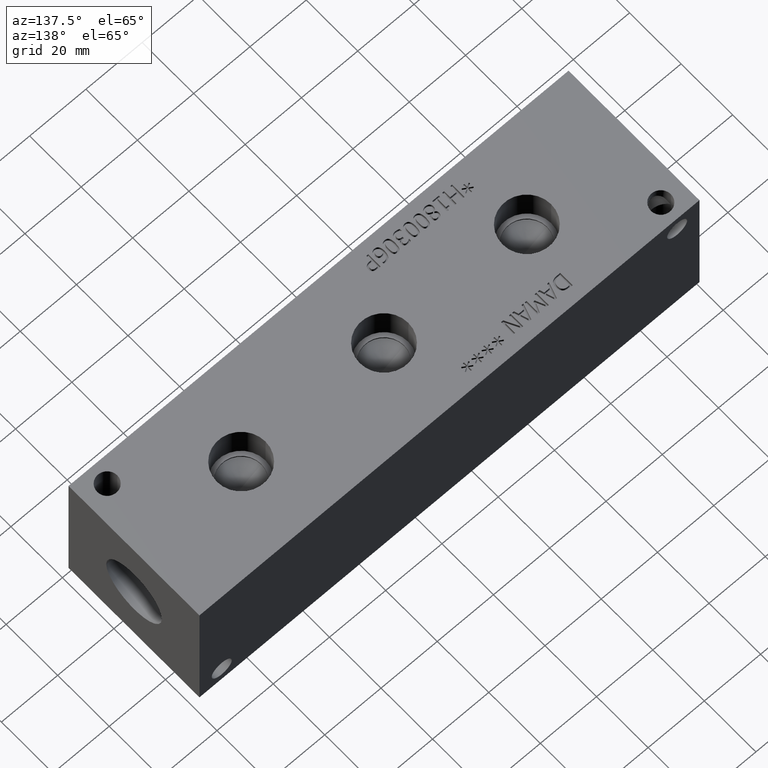
[diagram: clean part render]
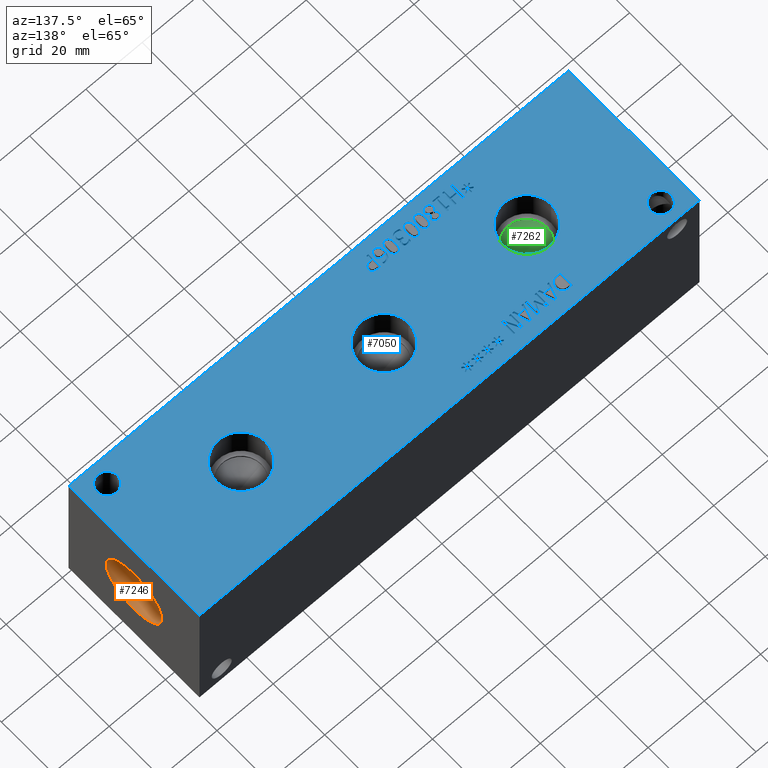
[diagram: same view with three faces highlighted in distinct colors, each labeled with its STEP entity id]
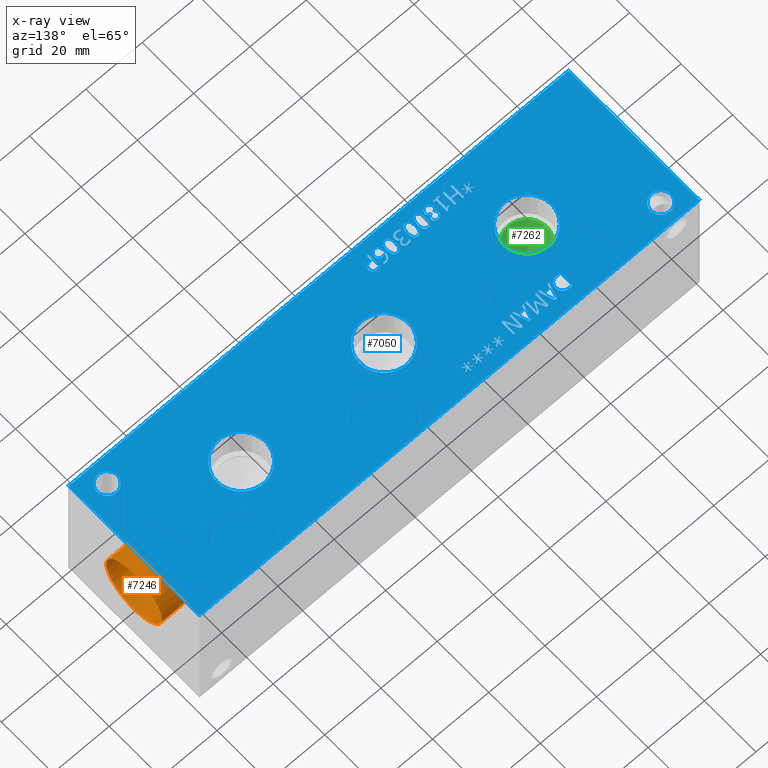
[diagram: x-ray of the same camera — body ghosted, the three highlighted faces saturated]
A machine part, auxiliary view with three faces highlighted in distinct colors.
The next image is the same camera in x-ray (body ghosted, the three faces saturated) — at least one of them is partly hidden behind the body in this view.
Their STEP definitions:

[orange] entity #7246 — the highlighted cylindrical surface (bore or boss wall) has radius 10.795 mm, axis along (1, 0, 0).
#28=CYLINDRICAL_SURFACE('',#7554,10.795);
#87=CIRCLE('',#7551,10.795);
#88=CIRCLE('',#7552,10.795);
#90=CIRCLE('',#7555,10.795);
#91=CIRCLE('',#7556,10.795);
#841=FACE_OUTER_BOUND('',#1247,.T.);
#1247=EDGE_LOOP('',(#6199,#6200,#6201,#6202,#6203,#6204));
#1967=LINE('',#12330,#2670);
#2670=VECTOR('',#8831,10.795);
#3327=VERTEX_POINT('',#12319);
#3328=VERTEX_POINT('',#12320);
#3330=VERTEX_POINT('',#12326);
#3331=VERTEX_POINT('',#12327);
#4300=EDGE_CURVE('',#3327,#3328,#87,.T.);
#4301=EDGE_CURVE('',#3328,#3327,#88,.T.);
#4303=EDGE_CURVE('',#3330,#3331,#90,.T.);
#4304=EDGE_CURVE('',#3331,#3330,#91,.T.);
#4305=EDGE_CURVE('',#3331,#3328,#1967,.T.);
#6199=ORIENTED_EDGE('',*,*,#4303,.F.);
#6200=ORIENTED_EDGE('',*,*,#4304,.F.);
#6201=ORIENTED_EDGE('',*,*,#4305,.T.);
#6202=ORIENTED_EDGE('',*,*,#4300,.F.);
#6203=ORIENTED_EDGE('',*,*,#4301,.F.);
#6204=ORIENTED_EDGE('',*,*,#4305,.F.);
#7246=ADVANCED_FACE('',(#841),#28,.F.);
#7551=AXIS2_PLACEMENT_3D('',#12321,#8819,#8820);
#7552=AXIS2_PLACEMENT_3D('',#12322,#8821,#8822);
#7554=AXIS2_PLACEMENT_3D('',#12325,#8825,#8826);
#7555=AXIS2_PLACEMENT_3D('',#12328,#8827,#8828);
#7556=AXIS2_PLACEMENT_3D('',#12329,#8829,#8830);
#8819=DIRECTION('center_axis',(1.,0.,0.));
#8820=DIRECTION('ref_axis',(0.,1.,0.));
#8821=DIRECTION('center_axis',(1.,0.,0.));
#8822=DIRECTION('ref_axis',(0.,1.,0.));
#8825=DIRECTION('center_axis',(1.,0.,0.));
#8826=DIRECTION('ref_axis',(0.,1.,0.));
#8827=DIRECTION('center_axis',(-1.,0.,0.));
#8828=DIRECTION('ref_axis',(0.,1.,0.));
#8829=DIRECTION('center_axis',(-1.,0.,0.));
#8830=DIRECTION('ref_axis',(0.,1.,0.));
#8831=DIRECTION('',(-1.,0.,0.));
#12319=CARTESIAN_POINT('',(162.433,36.195,25.4));
#12320=CARTESIAN_POINT('',(162.433,14.605,25.4));
#12321=CARTESIAN_POINT('Origin',(162.433,25.4,25.4));
#12322=CARTESIAN_POINT('Origin',(162.433,25.4,25.4));
#12325=CARTESIAN_POINT('Origin',(170.1165,25.4,25.4));
#12326=CARTESIAN_POINT('',(177.8,36.195,25.4));
#12327=CARTESIAN_POINT('',(177.8,14.605,25.4));
#12328=CARTESIAN_POINT('Origin',(177.8,25.4,25.4));
#12329=CARTESIAN_POINT('Origin',(177.8,25.4,25.4));
#12330=CARTESIAN_POINT('',(170.1165,14.605,25.4));

[blue] entity #7050 — the highlighted planar face has unit normal (0, 0, 1).
#54=CIRCLE('',#7425,8.6487);
#55=CIRCLE('',#7426,8.6487);
#56=CIRCLE('',#7427,8.6487);
#57=CIRCLE('',#7428,8.6487);
#58=CIRCLE('',#7429,8.6487);
#59=CIRCLE('',#7430,8.6487);
#60=CIRCLE('',#7431,3.5687);
#61=CIRCLE('',#7432,3.5687);
#62=CIRCLE('',#7433,3.5687);
#63=CIRCLE('',#7434,3.5687);
#130=B_SPLINE_CURVE_WITH_KNOTS('',2,(#9468,#9469,#9470,#9471),
 .UNSPECIFIED.,.F.,.F.,(3,1,3),(0.,1.,2.),.UNSPECIFIED.);
#132=B_SPLINE_CURVE_WITH_KNOTS('',2,(#9489,#9490,#9491,#9492),
 .UNSPECIFIED.,.F.,.F.,(3,1,3),(0.,1.,2.),.UNSPECIFIED.);
#134=B_SPLINE_CURVE_WITH_KNOTS('',2,(#9526,#9527,#9528,#9529),
 .UNSPECIFIED.,.F.,.F.,(3,1,3),(0.,1.,2.),.UNSPECIFIED.);
#136=B_SPLINE_CURVE_WITH_KNOTS('',2,(#9544,#9545,#9546,#9547),
 .UNSPECIFIED.,.F.,.F.,(3,1,3),(0.,1.,2.),.UNSPECIFIED.);
#138=B_SPLINE_CURVE_WITH_KNOTS('',2,(#9910,#9911,#9912,#9913),
 .UNSPECIFIED.,.F.,.F.,(3,1,3),(0.,1.,2.),.UNSPECIFIED.);
#139=B_SPLINE_CURVE_WITH_KNOTS('',2,(#9915,#9916,#9917,#9918),
 .UNSPECIFIED.,.F.,.F.,(3,1,3),(0.,1.,2.),.UNSPECIFIED.);
#140=B_SPLINE_CURVE_WITH_KNOTS('',2,(#9920,#9921,#9922,#9923),
 .UNSPECIFIED.,.F.,.F.,(3,1,3),(0.,1.,2.),.UNSPECIFIED.);
#141=B_SPLINE_CURVE_WITH_KNOTS('',2,(#9934,#9935,#9936,#9937),
 .UNSPECIFIED.,.F.,.F.,(3,1,3),(0.,1.,2.),.UNSPECIFIED.);
#142=B_SPLINE_CURVE_WITH_KNOTS('',2,(#9940,#9941,#9942,#9943),
 .UNSPECIFIED.,.F.,.F.,(3,1,3),(0.,1.,2.),.UNSPECIFIED.);
#143=B_SPLINE_CURVE_WITH_KNOTS('',2,(#9945,#9946,#9947,#9948),
 .UNSPECIFIED.,.F.,.F.,(3,1,3),(0.,1.,2.),.UNSPECIFIED.);
#144=B_SPLINE_CURVE_WITH_KNOTS('',2,(#9950,#9951,#9952,#9953),
 .UNSPECIFIED.,.F.,.F.,(3,1,3),(0.,1.,2.),.UNSPECIFIED.);
#145=B_SPLINE_CURVE_WITH_KNOTS('',2,(#9955,#9956,#9957,#9958),
 .UNSPECIFIED.,.F.,.F.,(3,1,3),(0.,1.,2.),.UNSPECIFIED.);
#146=B_SPLINE_CURVE_WITH_KNOTS('',2,(#9960,#9961,#9962,#9963),
 .UNSPECIFIED.,.F.,.F.,(3,1,3),(0.,1.,2.),.UNSPECIFIED.);
#147=B_SPLINE_CURVE_WITH_KNOTS('',2,(#9965,#9966,#9967,#9968),
 .UNSPECIFIED.,.F.,.F.,(3,1,3),(0.,1.,2.),.UNSPECIFIED.);
#148=B_SPLINE_CURVE_WITH_KNOTS('',2,(#9970,#9971,#9972,#9973),
 .UNSPECIFIED.,.F.,.F.,(3,1,3),(0.,1.,2.),.UNSPECIFIED.);
#149=B_SPLINE_CURVE_WITH_KNOTS('',2,(#9975,#9976,#9977,#9978),
 .UNSPECIFIED.,.F.,.F.,(3,1,3),(0.,1.,2.),.UNSPECIFIED.);
#150=B_SPLINE_CURVE_WITH_KNOTS('',2,(#9984,#9985,#9986,#9987),
 .UNSPECIFIED.,.F.,.F.,(3,1,3),(0.,1.,2.),.UNSPECIFIED.);
#151=B_SPLINE_CURVE_WITH_KNOTS('',2,(#9989,#9990,#9991,#9992),
 .UNSPECIFIED.,.F.,.F.,(3,1,3),(0.,1.,2.),.UNSPECIFIED.);
#152=B_SPLINE_CURVE_WITH_KNOTS('',2,(#9994,#9995,#9996,#9997),
 .UNSPECIFIED.,.F.,.F.,(3,1,3),(0.,1.,2.),.UNSPECIFIED.);
#153=B_SPLINE_CURVE_WITH_KNOTS('',2,(#9998,#9999,#10000,#10001),
 .UNSPECIFIED.,.F.,.F.,(3,1,3),(0.,1.,2.),.UNSPECIFIED.);
#154=B_SPLINE_CURVE_WITH_KNOTS('',2,(#10004,#10005,#10006,#10007),
 .UNSPECIFIED.,.F.,.F.,(3,1,3),(0.,1.,2.),.UNSPECIFIED.);
#155=B_SPLINE_CURVE_WITH_KNOTS('',2,(#10009,#10010,#10011,#10012),
 .UNSPECIFIED.,.F.,.F.,(3,1,3),(0.,1.,2.),.UNSPECIFIED.);
#156=B_SPLINE_CURVE_WITH_KNOTS('',2,(#10014,#10015,#10016,#10017),
 .UNSPECIFIED.,.F.,.F.,(3,1,3),(0.,1.,2.),.UNSPECIFIED.);
#157=B_SPLINE_CURVE_WITH_KNOTS('',2,(#10018,#10019,#10020,#10021),
 .UNSPECIFIED.,.F.,.F.,(3,1,3),(0.,1.,2.),.UNSPECIFIED.);
#158=B_SPLINE_CURVE_WITH_KNOTS('',2,(#10024,#10025,#10026,#10027),
 .UNSPECIFIED.,.F.,.F.,(3,1,3),(0.,1.,2.),.UNSPECIFIED.);
#159=B_SPLINE_CURVE_WITH_KNOTS('',2,(#10029,#10030,#10031,#10032),
 .UNSPECIFIED.,.F.,.F.,(3,1,3),(0.,1.,2.),.UNSPECIFIED.);
#160=B_SPLINE_CURVE_WITH_KNOTS('',2,(#10034,#10035,#10036,#10037),
 .UNSPECIFIED.,.F.,.F.,(3,1,3),(0.,1.,2.),.UNSPECIFIED.);
#161=B_SPLINE_CURVE_WITH_KNOTS('',2,(#10039,#10040,#10041,#10042),
 .UNSPECIFIED.,.F.,.F.,(3,1,3),(0.,1.,2.),.UNSPECIFIED.);
#162=B_SPLINE_CURVE_WITH_KNOTS('',2,(#10046,#10047,#10048,#10049),
 .UNSPECIFIED.,.F.,.F.,(3,1,3),(0.,1.,2.),.UNSPECIFIED.);
#163=B_SPLINE_CURVE_WITH_KNOTS('',2,(#10051,#10052,#10053,#10054),
 .UNSPECIFIED.,.F.,.F.,(3,1,3),(0.,1.,2.),.UNSPECIFIED.);
#164=B_SPLINE_CURVE_WITH_KNOTS('',2,(#10056,#10057,#10058,#10059),
 .UNSPECIFIED.,.F.,.F.,(3,1,3),(0.,1.,2.),.UNSPECIFIED.);
#165=B_SPLINE_CURVE_WITH_KNOTS('',2,(#10061,#10062,#10063,#10064),
 .UNSPECIFIED.,.F.,.F.,(3,1,3),(0.,1.,2.),.UNSPECIFIED.);
#166=B_SPLINE_CURVE_WITH_KNOTS('',2,(#10067,#10068,#10069,#10070),
 .UNSPECIFIED.,.F.,.F.,(3,1,3),(0.,1.,2.),.UNSPECIFIED.);
#167=B_SPLINE_CURVE_WITH_KNOTS('',2,(#10147,#10148,#10149,#10150),
 .UNSPECIFIED.,.F.,.F.,(3,1,3),(0.,1.,2.),.UNSPECIFIED.);
#168=B_SPLINE_CURVE_WITH_KNOTS('',2,(#10158,#10159,#10160,#10161),
 .UNSPECIFIED.,.F.,.F.,(3,1,3),(0.,1.,2.),.UNSPECIFIED.);
#169=B_SPLINE_CURVE_WITH_KNOTS('',2,(#10163,#10164,#10165,#10166),
 .UNSPECIFIED.,.F.,.F.,(3,1,3),(0.,1.,2.),.UNSPECIFIED.);
#170=B_SPLINE_CURVE_WITH_KNOTS('',2,(#10168,#10169,#10170,#10171),
 .UNSPECIFIED.,.F.,.F.,(3,1,3),(0.,1.,2.),.UNSPECIFIED.);
#171=B_SPLINE_CURVE_WITH_KNOTS('',2,(#10172,#10173,#10174,#10175),
 .UNSPECIFIED.,.F.,.F.,(3,1,3),(0.,1.,2.),.UNSPECIFIED.);
#172=B_SPLINE_CURVE_WITH_KNOTS('',2,(#10178,#10179,#10180,#10181),
 .UNSPECIFIED.,.F.,.F.,(3,1,3),(0.,1.,2.),.UNSPECIFIED.);
#173=B_SPLINE_CURVE_WITH_KNOTS('',2,(#10183,#10184,#10185,#10186),
 .UNSPECIFIED.,.F.,.F.,(3,1,3),(0.,1.,2.),.UNSPECIFIED.);
#174=B_SPLINE_CURVE_WITH_KNOTS('',2,(#10188,#10189,#10190,#10191),
 .UNSPECIFIED.,.F.,.F.,(3,1,3),(0.,1.,2.),.UNSPECIFIED.);
#175=B_SPLINE_CURVE_WITH_KNOTS('',2,(#10192,#10193,#10194,#10195),
 .UNSPECIFIED.,.F.,.F.,(3,1,3),(0.,1.,2.),.UNSPECIFIED.);
#176=B_SPLINE_CURVE_WITH_KNOTS('',2,(#10198,#10199,#10200,#10201),
 .UNSPECIFIED.,.F.,.F.,(3,1,3),(0.,1.,2.),.UNSPECIFIED.);
#177=B_SPLINE_CURVE_WITH_KNOTS('',2,(#10203,#10204,#10205,#10206),
 .UNSPECIFIED.,.F.,.F.,(3,1,3),(0.,1.,2.),.UNSPECIFIED.);
#178=B_SPLINE_CURVE_WITH_KNOTS('',2,(#10208,#10209,#10210,#10211),
 .UNSPECIFIED.,.F.,.F.,(3,1,3),(0.,1.,2.),.UNSPECIFIED.);
#179=B_SPLINE_CURVE_WITH_KNOTS('',2,(#10217,#10218,#10219,#10220),
 .UNSPECIFIED.,.F.,.F.,(3,1,3),(0.,1.,2.),.UNSPECIFIED.);
#180=B_SPLINE_CURVE_WITH_KNOTS('',2,(#10222,#10223,#10224,#10225),
 .UNSPECIFIED.,.F.,.F.,(3,1,3),(0.,1.,2.),.UNSPECIFIED.);
#181=B_SPLINE_CURVE_WITH_KNOTS('',2,(#10227,#10228,#10229,#10230),
 .UNSPECIFIED.,.F.,.F.,(3,1,3),(0.,1.,2.),.UNSPECIFIED.);
#182=B_SPLINE_CURVE_WITH_KNOTS('',2,(#10232,#10233,#10234,#10235),
 .UNSPECIFIED.,.F.,.F.,(3,1,3),(0.,1.,2.),.UNSPECIFIED.);
#183=B_SPLINE_CURVE_WITH_KNOTS('',2,(#10239,#10240,#10241,#10242),
 .UNSPECIFIED.,.F.,.F.,(3,1,3),(0.,1.,2.),.UNSPECIFIED.);
#184=B_SPLINE_CURVE_WITH_KNOTS('',2,(#10244,#10245,#10246,#10247),
 .UNSPECIFIED.,.F.,.F.,(3,1,3),(0.,1.,2.),.UNSPECIFIED.);
#185=B_SPLINE_CURVE_WITH_KNOTS('',2,(#10249,#10250,#10251,#10252),
 .UNSPECIFIED.,.F.,.F.,(3,1,3),(0.,1.,2.),.UNSPECIFIED.);
#186=B_SPLINE_CURVE_WITH_KNOTS('',2,(#10254,#10255,#10256,#10257),
 .UNSPECIFIED.,.F.,.F.,(3,1,3),(0.,1.,2.),.UNSPECIFIED.);
#187=B_SPLINE_CURVE_WITH_KNOTS('',2,(#10259,#10260,#10261,#10262),
 .UNSPECIFIED.,.F.,.F.,(3,1,3),(0.,1.,2.),.UNSPECIFIED.);
#188=B_SPLINE_CURVE_WITH_KNOTS('',2,(#10268,#10269,#10270,#10271),
 .UNSPECIFIED.,.F.,.F.,(3,1,3),(0.,1.,2.),.UNSPECIFIED.);
#189=B_SPLINE_CURVE_WITH_KNOTS('',2,(#10273,#10274,#10275,#10276),
 .UNSPECIFIED.,.F.,.F.,(3,1,3),(0.,1.,2.),.UNSPECIFIED.);
#190=B_SPLINE_CURVE_WITH_KNOTS('',2,(#10278,#10279,#10280,#10281),
 .UNSPECIFIED.,.F.,.F.,(3,1,3),(0.,1.,2.),.UNSPECIFIED.);
#191=B_SPLINE_CURVE_WITH_KNOTS('',2,(#10283,#10284,#10285,#10286),
 .UNSPECIFIED.,.F.,.F.,(3,1,3),(0.,1.,2.),.UNSPECIFIED.);
#192=B_SPLINE_CURVE_WITH_KNOTS('',2,(#10288,#10289,#10290,#10291),
 .UNSPECIFIED.,.F.,.F.,(3,1,3),(0.,1.,2.),.UNSPECIFIED.);
#193=B_SPLINE_CURVE_WITH_KNOTS('',2,(#10299,#10300,#10301,#10302),
 .UNSPECIFIED.,.F.,.F.,(3,1,3),(0.,1.,2.),.UNSPECIFIED.);
#194=B_SPLINE_CURVE_WITH_KNOTS('',2,(#10303,#10304,#10305,#10306),
 .UNSPECIFIED.,.F.,.F.,(3,1,3),(0.,1.,2.),.UNSPECIFIED.);
#455=FACE_BOUND('',#1017,.T.);
#456=FACE_BOUND('',#1018,.T.);
#457=FACE_BOUND('',#1019,.T.);
#458=FACE_BOUND('',#1020,.T.);
#459=FACE_BOUND('',#1021,.T.);
#460=FACE_BOUND('',#1022,.T.);
#461=FACE_BOUND('',#1023,.T.);
#462=FACE_BOUND('',#1024,.T.);
#463=FACE_BOUND('',#1025,.T.);
#464=FACE_BOUND('',#1026,.T.);
#465=FACE_BOUND('',#1027,.T.);
#466=FACE_BOUND('',#1028,.T.);
#467=FACE_BOUND('',#1029,.T.);
#468=FACE_BOUND('',#1030,.T.);
#469=FACE_BOUND('',#1031,.T.);
#470=FACE_BOUND('',#1032,.T.);
#471=FACE_BOUND('',#1033,.T.);
#472=FACE_BOUND('',#1034,.T.);
#473=FACE_BOUND('',#1035,.T.);
#474=FACE_BOUND('',#1036,.T.);
#475=FACE_BOUND('',#1037,.T.);
#476=FACE_BOUND('',#1038,.T.);
#477=FACE_BOUND('',#1039,.T.);
#478=FACE_BOUND('',#1040,.T.);
#645=FACE_OUTER_BOUND('',#1016,.T.);
#1016=EDGE_LOOP('',(#5028,#5029,#5030,#5031));
#1017=EDGE_LOOP('',(#5032,#5033,#5034,#5035,#5036,#5037,#5038,#5039,#5040));
#1018=EDGE_LOOP('',(#5041,#5042,#5043,#5044,#5045,#5046,#5047,#5048,#5049,
#5050,#5051,#5052,#5053,#5054));
#1019=EDGE_LOOP('',(#5055,#5056,#5057,#5058));
#1020=EDGE_LOOP('',(#5059,#5060,#5061,#5062,#5063,#5064,#5065,#5066,#5067,
#5068,#5069));
#1021=EDGE_LOOP('',(#5070,#5071,#5072,#5073,#5074,#5075,#5076,#5077,#5078,
#5079,#5080,#5081));
#1022=EDGE_LOOP('',(#5082,#5083,#5084,#5085,#5086,#5087,#5088,#5089,#5090,
#5091,#5092,#5093,#5094,#5095,#5096,#5097,#5098,#5099));
#1023=EDGE_LOOP('',(#5100,#5101,#5102,#5103,#5104,#5105,#5106,#5107,#5108,
#5109,#5110));
#1024=EDGE_LOOP('',(#5111,#5112,#5113,#5114));
#1025=EDGE_LOOP('',(#5115,#5116,#5117,#5118));
#1026=EDGE_LOOP('',(#5119,#5120,#5121,#5122,#5123,#5124,#5125,#5126,#5127,
#5128,#5129,#5130,#5131,#5132,#5133,#5134,#5135,#5136,#5137,#5138,#5139,
#5140,#5141,#5142,#5143,#5144,#5145));
#1027=EDGE_LOOP('',(#5146,#5147));
#1028=EDGE_LOOP('',(#5148,#5149));
#1029=EDGE_LOOP('',(#5150,#5151));
#1030=EDGE_LOOP('',(#5152,#5153));
#1031=EDGE_LOOP('',(#5154,#5155));
#1032=EDGE_LOOP('',(#5156,#5157,#5158,#5159,#5160,#5161,#5162,#5163,#5164,
#5165,#5166,#5167,#5168,#5169,#5170,#5171,#5172,#5173));
#1033=EDGE_LOOP('',(#5174,#5175,#5176,#5177,#5178,#5179,#5180,#5181,#5182,
#5183,#5184,#5185,#5186,#5187,#5188,#5189,#5190,#5191));
#1034=EDGE_LOOP('',(#5192,#5193,#5194,#5195,#5196,#5197,#5198,#5199,#5200,
#5201));
#1035=EDGE_LOOP('',(#5202,#5203,#5204,#5205,#5206,#5207,#5208,#5209));
#1036=EDGE_LOOP('',(#5210,#5211,#5212,#5213,#5214,#5215,#5216));
#1037=EDGE_LOOP('',(#5217,#5218,#5219,#5220,#5221,#5222,#5223,#5224));
#1038=EDGE_LOOP('',(#5225,#5226,#5227,#5228,#5229,#5230,#5231,#5232,#5233,
#5234,#5235,#5236,#5237));
#1039=EDGE_LOOP('',(#5238,#5239,#5240,#5241,#5242,#5243,#5244,#5245,#5246,
#5247,#5248,#5249,#5250,#5251,#5252,#5253,#5254,#5255));
#1040=EDGE_LOOP('',(#5256,#5257,#5258,#5259,#5260,#5261,#5262,#5263,#5264,
#5265,#5266,#5267,#5268,#5269,#5270,#5271,#5272,#5273));
#1294=LINE('',#9003,#1997);
#1298=LINE('',#9011,#2001);
#1301=LINE('',#9017,#2004);
#1304=LINE('',#9023,#2007);
#1307=LINE('',#9029,#2010);
#1310=LINE('',#9035,#2013);
#1313=LINE('',#9041,#2016);
#1316=LINE('',#9047,#2019);
#1319=LINE('',#9053,#2022);
#1322=LINE('',#9059,#2025);
#1325=LINE('',#9065,#2028);
#1328=LINE('',#9071,#2031);
#1331=LINE('',#9077,#2034);
#1334=LINE('',#9083,#2037);
#1337=LINE('',#9089,#2040);
#1340=LINE('',#9095,#2043);
#1343=LINE('',#9101,#2046);
#1346=LINE('',#9106,#2049);
#1348=LINE('',#9112,#2051);
#1352=LINE('',#9120,#2055);
#1355=LINE('',#9126,#2058);
#1358=LINE('',#9132,#2061);
#1361=LINE('',#9138,#2064);
#1364=LINE('',#9144,#2067);
#1367=LINE('',#9150,#2070);
#1370=LINE('',#9156,#2073);
#1373=LINE('',#9162,#2076);
#1376=LINE('',#9168,#2079);
#1379=LINE('',#9174,#2082);
#1382=LINE('',#9180,#2085);
#1385=LINE('',#9186,#2088);
#1388=LINE('',#9192,#2091);
#1391=LINE('',#9198,#2094);
#1394=LINE('',#9204,#2097);
#1397=LINE('',#9210,#2100);
#1400=LINE('',#9215,#2103);
#1402=LINE('',#9221,#2105);
#1406=LINE('',#9229,#2109);
#1409=LINE('',#9235,#2112);
#1412=LINE('',#9241,#2115);
#1415=LINE('',#9247,#2118);
#1418=LINE('',#9253,#2121);
#1421=LINE('',#9259,#2124);
#1424=LINE('',#9265,#2127);
#1427=LINE('',#9271,#2130);
#1430=LINE('',#9277,#2133);
#1433=LINE('',#9283,#2136);
#1436=LINE('',#9289,#2139);
#1439=LINE('',#9294,#2142);
#1450=LINE('',#9318,#2153);
#1454=LINE('',#9326,#2157);
#1457=LINE('',#9332,#2160);
#1460=LINE('',#9338,#2163);
#1463=LINE('',#9344,#2166);
#1466=LINE('',#9350,#2169);
#1469=LINE('',#9356,#2172);
#1472=LINE('',#9361,#2175);
#1490=LINE('',#9501,#2193);
#1493=LINE('',#9507,#2196);
#1496=LINE('',#9513,#2199);
#1509=LINE('',#9574,#2212);
#1513=LINE('',#9582,#2216);
#1516=LINE('',#9588,#2219);
#1519=LINE('',#9594,#2222);
#1522=LINE('',#9600,#2225);
#1525=LINE('',#9606,#2228);
#1528=LINE('',#9612,#2231);
#1531=LINE('',#9617,#2234);
#1533=LINE('',#9623,#2236);
#1537=LINE('',#9631,#2240);
#1540=LINE('',#9637,#2243);
#1543=LINE('',#9643,#2246);
#1546=LINE('',#9649,#2249);
#1549=LINE('',#9655,#2252);
#1552=LINE('',#9661,#2255);
#1555=LINE('',#9667,#2258);
#1558=LINE('',#9673,#2261);
#1561=LINE('',#9678,#2264);
#1563=LINE('',#9684,#2266);
#1567=LINE('',#9692,#2270);
#1570=LINE('',#9698,#2273);
#1573=LINE('',#9704,#2276);
#1576=LINE('',#9710,#2279);
#1579=LINE('',#9716,#2282);
#1582=LINE('',#9722,#2285);
#1585=LINE('',#9728,#2288);
#1588=LINE('',#9734,#2291);
#1591=LINE('',#9740,#2294);
#1594=LINE('',#9746,#2297);
#1597=LINE('',#9752,#2300);
#1600=LINE('',#9758,#2303);
#1603=LINE('',#9764,#2306);
#1606=LINE('',#9770,#2309);
#1609=LINE('',#9776,#2312);
#1612=LINE('',#9782,#2315);
#1615=LINE('',#9787,#2318);
#1617=LINE('',#9793,#2320);
#1621=LINE('',#9801,#2324);
#1624=LINE('',#9807,#2327);
#1627=LINE('',#9813,#2330);
#1630=LINE('',#9819,#2333);
#1633=LINE('',#9825,#2336);
#1636=LINE('',#9831,#2339);
#1639=LINE('',#9837,#2342);
#1642=LINE('',#9843,#2345);
#1645=LINE('',#9849,#2348);
#1648=LINE('',#9855,#2351);
#1651=LINE('',#9861,#2354);
#1654=LINE('',#9867,#2357);
#1657=LINE('',#9873,#2360);
#1660=LINE('',#9879,#2363);
#1663=LINE('',#9885,#2366);
#1666=LINE('',#9891,#2369);
#1669=LINE('',#9896,#2372);
#1671=LINE('',#9902,#2374);
#1672=LINE('',#9904,#2375);
#1673=LINE('',#9906,#2376);
#1674=LINE('',#9907,#2377);
#1675=LINE('',#9925,#2378);
#1676=LINE('',#9927,#2379);
#1677=LINE('',#9929,#2380);
#1678=LINE('',#9931,#2381);
#1679=LINE('',#9933,#2382);
#1680=LINE('',#9980,#2383);
#1681=LINE('',#9982,#2384);
#1682=LINE('',#10044,#2385);
#1683=LINE('',#10066,#2386);
#1684=LINE('',#10073,#2387);
#1685=LINE('',#10075,#2388);
#1686=LINE('',#10077,#2389);
#1687=LINE('',#10079,#2390);
#1688=LINE('',#10081,#2391);
#1689=LINE('',#10083,#2392);
#1690=LINE('',#10085,#2393);
#1691=LINE('',#10087,#2394);
#1692=LINE('',#10089,#2395);
#1693=LINE('',#10091,#2396);
#1694=LINE('',#10093,#2397);
#1695=LINE('',#10094,#2398);
#1696=LINE('',#10097,#2399);
#1697=LINE('',#10099,#2400);
#1698=LINE('',#10101,#2401);
#1699=LINE('',#10103,#2402);
#1700=LINE('',#10105,#2403);
#1701=LINE('',#10107,#2404);
#1702=LINE('',#10109,#2405);
#1703=LINE('',#10111,#2406);
#1704=LINE('',#10113,#2407);
#1705=LINE('',#10115,#2408);
#1706=LINE('',#10117,#2409);
#1707=LINE('',#10119,#2410);
#1708=LINE('',#10121,#2411);
#1709=LINE('',#10123,#2412);
#1710=LINE('',#10125,#2413);
#1711=LINE('',#10127,#2414);
#1712=LINE('',#10129,#2415);
#1713=LINE('',#10130,#2416);
#1714=LINE('',#10133,#2417);
#1715=LINE('',#10135,#2418);
#1716=LINE('',#10137,#2419);
#1717=LINE('',#10139,#2420);
#1718=LINE('',#10141,#2421);
#1719=LINE('',#10143,#2422);
#1720=LINE('',#10145,#2423);
#1721=LINE('',#10152,#2424);
#1722=LINE('',#10154,#2425);
#1723=LINE('',#10155,#2426);
#1724=LINE('',#10213,#2427);
#1725=LINE('',#10215,#2428);
#1726=LINE('',#10237,#2429);
#1727=LINE('',#10264,#2430);
#1728=LINE('',#10266,#2431);
#1729=LINE('',#10293,#2432);
#1730=LINE('',#10295,#2433);
#1731=LINE('',#10297,#2434);
#1997=VECTOR('',#7630,10.);
#2001=VECTOR('',#7636,10.);
#2004=VECTOR('',#7641,10.);
#2007=VECTOR('',#7646,10.);
#2010=VECTOR('',#7651,10.);
#2013=VECTOR('',#7656,10.);
#2016=VECTOR('',#7661,10.);
#2019=VECTOR('',#7666,10.);
#2022=VECTOR('',#7671,10.);
#2025=VECTOR('',#7676,10.);
#2028=VECTOR('',#7681,10.);
#2031=VECTOR('',#7686,10.);
#2034=VECTOR('',#7691,10.);
#2037=VECTOR('',#7696,10.);
#2040=VECTOR('',#7701,10.);
#2043=VECTOR('',#7706,10.);
#2046=VECTOR('',#7711,10.);
#2049=VECTOR('',#7716,10.);
#2051=VECTOR('',#7722,10.);
#2055=VECTOR('',#7728,10.);
#2058=VECTOR('',#7733,10.);
#2061=VECTOR('',#7738,10.);
#2064=VECTOR('',#7743,10.);
#2067=VECTOR('',#7748,10.);
#2070=VECTOR('',#7753,10.);
#2073=VECTOR('',#7758,10.);
#2076=VECTOR('',#7763,10.);
#2079=VECTOR('',#7768,10.);
#2082=VECTOR('',#7773,10.);
#2085=VECTOR('',#7778,10.);
#2088=VECTOR('',#7783,10.);
#2091=VECTOR('',#7788,10.);
#2094=VECTOR('',#7793,10.);
#2097=VECTOR('',#7798,10.);
#2100=VECTOR('',#7803,10.);
#2103=VECTOR('',#7808,10.);
#2105=VECTOR('',#7814,10.);
#2109=VECTOR('',#7820,10.);
#2112=VECTOR('',#7825,10.);
#2115=VECTOR('',#7830,10.);
#2118=VECTOR('',#7835,10.);
#2121=VECTOR('',#7840,10.);
#2124=VECTOR('',#7845,10.);
#2127=VECTOR('',#7850,10.);
#2130=VECTOR('',#7855,10.);
#2133=VECTOR('',#7860,10.);
#2136=VECTOR('',#7865,10.);
#2139=VECTOR('',#7870,10.);
#2142=VECTOR('',#7875,10.);
#2153=VECTOR('',#7896,10.);
#2157=VECTOR('',#7902,10.);
#2160=VECTOR('',#7907,10.);
#2163=VECTOR('',#7912,10.);
#2166=VECTOR('',#7917,10.);
#2169=VECTOR('',#7922,10.);
#2172=VECTOR('',#7927,10.);
#2175=VECTOR('',#7932,10.);
#2193=VECTOR('',#7960,10.);
#2196=VECTOR('',#7965,10.);
#2199=VECTOR('',#7970,10.);
#2212=VECTOR('',#7993,10.);
#2216=VECTOR('',#7999,10.);
#2219=VECTOR('',#8004,10.);
#2222=VECTOR('',#8009,10.);
#2225=VECTOR('',#8014,10.);
#2228=VECTOR('',#8019,10.);
#2231=VECTOR('',#8024,10.);
#2234=VECTOR('',#8029,10.);
#2236=VECTOR('',#8035,10.);
#2240=VECTOR('',#8041,10.);
#2243=VECTOR('',#8046,10.);
#2246=VECTOR('',#8051,10.);
#2249=VECTOR('',#8056,10.);
#2252=VECTOR('',#8061,10.);
#2255=VECTOR('',#8066,10.);
#2258=VECTOR('',#8071,10.);
#2261=VECTOR('',#8076,10.);
#2264=VECTOR('',#8081,10.);
#2266=VECTOR('',#8087,10.);
#2270=VECTOR('',#8093,10.);
#2273=VECTOR('',#8098,10.);
#2276=VECTOR('',#8103,10.);
#2279=VECTOR('',#8108,10.);
#2282=VECTOR('',#8113,10.);
#2285=VECTOR('',#8118,10.);
#2288=VECTOR('',#8123,10.);
#2291=VECTOR('',#8128,10.);
#2294=VECTOR('',#8133,10.);
#2297=VECTOR('',#8138,10.);
#2300=VECTOR('',#8143,10.);
#2303=VECTOR('',#8148,10.);
#2306=VECTOR('',#8153,10.);
#2309=VECTOR('',#8158,10.);
#2312=VECTOR('',#8163,10.);
#2315=VECTOR('',#8168,10.);
#2318=VECTOR('',#8173,10.);
#2320=VECTOR('',#8179,10.);
#2324=VECTOR('',#8185,10.);
#2327=VECTOR('',#8190,10.);
#2330=VECTOR('',#8195,10.);
#2333=VECTOR('',#8200,10.);
#2336=VECTOR('',#8205,10.);
#2339=VECTOR('',#8210,10.);
#2342=VECTOR('',#8215,10.);
#2345=VECTOR('',#8220,10.);
#2348=VECTOR('',#8225,10.);
#2351=VECTOR('',#8230,10.);
#2354=VECTOR('',#8235,10.);
#2357=VECTOR('',#8240,10.);
#2360=VECTOR('',#8245,10.);
#2363=VECTOR('',#8250,10.);
#2366=VECTOR('',#8255,10.);
#2369=VECTOR('',#8260,10.);
#2372=VECTOR('',#8265,10.);
#2374=VECTOR('',#8271,10.);
#2375=VECTOR('',#8272,10.);
#2376=VECTOR('',#8273,10.);
#2377=VECTOR('',#8274,10.);
#2378=VECTOR('',#8275,10.);
#2379=VECTOR('',#8276,10.);
#2380=VECTOR('',#8277,10.);
#2381=VECTOR('',#8278,10.);
#2382=VECTOR('',#8279,10.);
#2383=VECTOR('',#8280,10.);
#2384=VECTOR('',#8281,10.);
#2385=VECTOR('',#8282,10.);
#2386=VECTOR('',#8283,10.);
#2387=VECTOR('',#8284,10.);
#2388=VECTOR('',#8285,10.);
#2389=VECTOR('',#8286,10.);
#2390=VECTOR('',#8287,10.);
#2391=VECTOR('',#8288,10.);
#2392=VECTOR('',#8289,10.);
#2393=VECTOR('',#8290,10.);
#2394=VECTOR('',#8291,10.);
#2395=VECTOR('',#8292,10.);
#2396=VECTOR('',#8293,10.);
#2397=VECTOR('',#8294,10.);
#2398=VECTOR('',#8295,10.);
#2399=VECTOR('',#8296,10.);
#2400=VECTOR('',#8297,10.);
#2401=VECTOR('',#8298,10.);
#2402=VECTOR('',#8299,10.);
#2403=VECTOR('',#8300,10.);
#2404=VECTOR('',#8301,10.);
#2405=VECTOR('',#8302,10.);
#2406=VECTOR('',#8303,10.);
#2407=VECTOR('',#8304,10.);
#2408=VECTOR('',#8305,10.);
#2409=VECTOR('',#8306,10.);
#2410=VECTOR('',#8307,10.);
#2411=VECTOR('',#8308,10.);
#2412=VECTOR('',#8309,10.);
#2413=VECTOR('',#8310,10.);
#2414=VECTOR('',#8311,10.);
#2415=VECTOR('',#8312,10.);
#2416=VECTOR('',#8313,10.);
#2417=VECTOR('',#8314,10.);
#2418=VECTOR('',#8315,10.);
#2419=VECTOR('',#8316,10.);
#2420=VECTOR('',#8317,10.);
#2421=VECTOR('',#8318,10.);
#2422=VECTOR('',#8319,10.);
#2423=VECTOR('',#8320,10.);
#2424=VECTOR('',#8321,10.);
#2425=VECTOR('',#8322,10.);
#2426=VECTOR('',#8323,10.);
#2427=VECTOR('',#8324,10.);
#2428=VECTOR('',#8325,10.);
#2429=VECTOR('',#8326,10.);
#2430=VECTOR('',#8327,10.);
#2431=VECTOR('',#8328,10.);
#2432=VECTOR('',#8329,10.);
#2433=VECTOR('',#8330,10.);
#2434=VECTOR('',#8331,10.);
#2700=VERTEX_POINT('',#9001);
#2701=VERTEX_POINT('',#9002);
#2704=VERTEX_POINT('',#9010);
#2706=VERTEX_POINT('',#9016);
#2708=VERTEX_POINT('',#9022);
#2710=VERTEX_POINT('',#9028);
#2712=VERTEX_POINT('',#9034);
#2714=VERTEX_POINT('',#9040);
#2716=VERTEX_POINT('',#9046);
#2718=VERTEX_POINT('',#9052);
#2720=VERTEX_POINT('',#9058);
#2722=VERTEX_POINT('',#9064);
#2724=VERTEX_POINT('',#9070);
#2726=VERTEX_POINT('',#9076);
#2728=VERTEX_POINT('',#9082);
#2730=VERTEX_POINT('',#9088);
#2732=VERTEX_POINT('',#9094);
#2734=VERTEX_POINT('',#9100);
#2736=VERTEX_POINT('',#9110);
#2737=VERTEX_POINT('',#9111);
#2740=VERTEX_POINT('',#9119);
#2742=VERTEX_POINT('',#9125);
#2744=VERTEX_POINT('',#9131);
#2746=VERTEX_POINT('',#9137);
#2748=VERTEX_POINT('',#9143);
#2750=VERTEX_POINT('',#9149);
#2752=VERTEX_POINT('',#9155);
#2754=VERTEX_POINT('',#9161);
#2756=VERTEX_POINT('',#9167);
#2758=VERTEX_POINT('',#9173);
#2760=VERTEX_POINT('',#9179);
#2762=VERTEX_POINT('',#9185);
#2764=VERTEX_POINT('',#9191);
#2766=VERTEX_POINT('',#9197);
#2768=VERTEX_POINT('',#9203);
#2770=VERTEX_POINT('',#9209);
#2772=VERTEX_POINT('',#9219);
#2773=VERTEX_POINT('',#9220);
#2776=VERTEX_POINT('',#9228);
#2778=VERTEX_POINT('',#9234);
#2780=VERTEX_POINT('',#9240);
#2782=VERTEX_POINT('',#9246);
#2784=VERTEX_POINT('',#9252);
#2786=VERTEX_POINT('',#9258);
#2788=VERTEX_POINT('',#9264);
#2790=VERTEX_POINT('',#9270);
#2792=VERTEX_POINT('',#9276);
#2794=VERTEX_POINT('',#9282);
#2796=VERTEX_POINT('',#9288);
#2804=VERTEX_POINT('',#9316);
#2805=VERTEX_POINT('',#9317);
#2808=VERTEX_POINT('',#9325);
#2810=VERTEX_POINT('',#9331);
#2812=VERTEX_POINT('',#9337);
#2814=VERTEX_POINT('',#9343);
#2816=VERTEX_POINT('',#9349);
#2818=VERTEX_POINT('',#9355);
#2834=VERTEX_POINT('',#9466);
#2835=VERTEX_POINT('',#9467);
#2838=VERTEX_POINT('',#9488);
#2840=VERTEX_POINT('',#9500);
#2842=VERTEX_POINT('',#9506);
#2844=VERTEX_POINT('',#9512);
#2846=VERTEX_POINT('',#9525);
#2854=VERTEX_POINT('',#9572);
#2855=VERTEX_POINT('',#9573);
#2858=VERTEX_POINT('',#9581);
#2860=VERTEX_POINT('',#9587);
#2862=VERTEX_POINT('',#9593);
#2864=VERTEX_POINT('',#9599);
#2866=VERTEX_POINT('',#9605);
#2868=VERTEX_POINT('',#9611);
#2870=VERTEX_POINT('',#9621);
#2871=VERTEX_POINT('',#9622);
#2874=VERTEX_POINT('',#9630);
#2876=VERTEX_POINT('',#9636);
#2878=VERTEX_POINT('',#9642);
#2880=VERTEX_POINT('',#9648);
#2882=VERTEX_POINT('',#9654);
#2884=VERTEX_POINT('',#9660);
#2886=VERTEX_POINT('',#9666);
#2888=VERTEX_POINT('',#9672);
#2890=VERTEX_POINT('',#9682);
#2891=VERTEX_POINT('',#9683);
#2894=VERTEX_POINT('',#9691);
#2896=VERTEX_POINT('',#9697);
#2898=VERTEX_POINT('',#9703);
#2900=VERTEX_POINT('',#9709);
#2902=VERTEX_POINT('',#9715);
#2904=VERTEX_POINT('',#9721);
#2906=VERTEX_POINT('',#9727);
#2908=VERTEX_POINT('',#9733);
#2910=VERTEX_POINT('',#9739);
#2912=VERTEX_POINT('',#9745);
#2914=VERTEX_POINT('',#9751);
#2916=VERTEX_POINT('',#9757);
#2918=VERTEX_POINT('',#9763);
#2920=VERTEX_POINT('',#9769);
#2922=VERTEX_POINT('',#9775);
#2924=VERTEX_POINT('',#9781);
#2926=VERTEX_POINT('',#9791);
#2927=VERTEX_POINT('',#9792);
#2930=VERTEX_POINT('',#9800);
#2932=VERTEX_POINT('',#9806);
#2934=VERTEX_POINT('',#9812);
#2936=VERTEX_POINT('',#9818);
#2938=VERTEX_POINT('',#9824);
#2940=VERTEX_POINT('',#9830);
#2942=VERTEX_POINT('',#9836);
#2944=VERTEX_POINT('',#9842);
#2946=VERTEX_POINT('',#9848);
#2948=VERTEX_POINT('',#9854);
#2950=VERTEX_POINT('',#9860);
#2952=VERTEX_POINT('',#9866);
#2954=VERTEX_POINT('',#9872);
#2956=VERTEX_POINT('',#9878);
#2958=VERTEX_POINT('',#9884);
#2960=VERTEX_POINT('',#9890);
#2962=VERTEX_POINT('',#9900);
#2963=VERTEX_POINT('',#9901);
#2964=VERTEX_POINT('',#9903);
#2965=VERTEX_POINT('',#9905);
#2966=VERTEX_POINT('',#9908);
#2967=VERTEX_POINT('',#9909);
#2968=VERTEX_POINT('',#9914);
#2969=VERTEX_POINT('',#9919);
#2970=VERTEX_POINT('',#9924);
#2971=VERTEX_POINT('',#9926);
#2972=VERTEX_POINT('',#9928);
#2973=VERTEX_POINT('',#9930);
#2974=VERTEX_POINT('',#9932);
#2975=VERTEX_POINT('',#9938);
#2976=VERTEX_POINT('',#9939);
#2977=VERTEX_POINT('',#9944);
#2978=VERTEX_POINT('',#9949);
#2979=VERTEX_POINT('',#9954);
#2980=VERTEX_POINT('',#9959);
#2981=VERTEX_POINT('',#9964);
#2982=VERTEX_POINT('',#9969);
#2983=VERTEX_POINT('',#9974);
#2984=VERTEX_POINT('',#9979);
#2985=VERTEX_POINT('',#9981);
#2986=VERTEX_POINT('',#9983);
#2987=VERTEX_POINT('',#9988);
#2988=VERTEX_POINT('',#9993);
#2989=VERTEX_POINT('',#10002);
#2990=VERTEX_POINT('',#10003);
#2991=VERTEX_POINT('',#10008);
#2992=VERTEX_POINT('',#10013);
#2993=VERTEX_POINT('',#10022);
#2994=VERTEX_POINT('',#10023);
#2995=VERTEX_POINT('',#10028);
#2996=VERTEX_POINT('',#10033);
#2997=VERTEX_POINT('',#10038);
#2998=VERTEX_POINT('',#10043);
#2999=VERTEX_POINT('',#10045);
#3000=VERTEX_POINT('',#10050);
#3001=VERTEX_POINT('',#10055);
#3002=VERTEX_POINT('',#10060);
#3003=VERTEX_POINT('',#10065);
#3004=VERTEX_POINT('',#10071);
#3005=VERTEX_POINT('',#10072);
#3006=VERTEX_POINT('',#10074);
#3007=VERTEX_POINT('',#10076);
#3008=VERTEX_POINT('',#10078);
#3009=VERTEX_POINT('',#10080);
#3010=VERTEX_POINT('',#10082);
#3011=VERTEX_POINT('',#10084);
#3012=VERTEX_POINT('',#10086);
#3013=VERTEX_POINT('',#10088);
#3014=VERTEX_POINT('',#10090);
#3015=VERTEX_POINT('',#10092);
#3016=VERTEX_POINT('',#10095);
#3017=VERTEX_POINT('',#10096);
#3018=VERTEX_POINT('',#10098);
#3019=VERTEX_POINT('',#10100);
#3020=VERTEX_POINT('',#10102);
#3021=VERTEX_POINT('',#10104);
#3022=VERTEX_POINT('',#10106);
#3023=VERTEX_POINT('',#10108);
#3024=VERTEX_POINT('',#10110);
#3025=VERTEX_POINT('',#10112);
#3026=VERTEX_POINT('',#10114);
#3027=VERTEX_POINT('',#10116);
#3028=VERTEX_POINT('',#10118);
#3029=VERTEX_POINT('',#10120);
#3030=VERTEX_POINT('',#10122);
#3031=VERTEX_POINT('',#10124);
#3032=VERTEX_POINT('',#10126);
#3033=VERTEX_POINT('',#10128);
#3034=VERTEX_POINT('',#10131);
#3035=VERTEX_POINT('',#10132);
#3036=VERTEX_POINT('',#10134);
#3037=VERTEX_POINT('',#10136);
#3038=VERTEX_POINT('',#10138);
#3039=VERTEX_POINT('',#10140);
#3040=VERTEX_POINT('',#10142);
#3041=VERTEX_POINT('',#10144);
#3042=VERTEX_POINT('',#10146);
#3043=VERTEX_POINT('',#10151);
#3044=VERTEX_POINT('',#10153);
#3045=VERTEX_POINT('',#10156);
#3046=VERTEX_POINT('',#10157);
#3047=VERTEX_POINT('',#10162);
#3048=VERTEX_POINT('',#10167);
#3049=VERTEX_POINT('',#10176);
#3050=VERTEX_POINT('',#10177);
#3051=VERTEX_POINT('',#10182);
#3052=VERTEX_POINT('',#10187);
#3053=VERTEX_POINT('',#10196);
#3054=VERTEX_POINT('',#10197);
#3055=VERTEX_POINT('',#10202);
#3056=VERTEX_POINT('',#10207);
#3057=VERTEX_POINT('',#10212);
#3058=VERTEX_POINT('',#10214);
#3059=VERTEX_POINT('',#10216);
#3060=VERTEX_POINT('',#10221);
#3061=VERTEX_POINT('',#10226);
#3062=VERTEX_POINT('',#10231);
#3063=VERTEX_POINT('',#10236);
#3064=VERTEX_POINT('',#10238);
#3065=VERTEX_POINT('',#10243);
#3066=VERTEX_POINT('',#10248);
#3067=VERTEX_POINT('',#10253);
#3068=VERTEX_POINT('',#10258);
#3069=VERTEX_POINT('',#10263);
#3070=VERTEX_POINT('',#10265);
#3071=VERTEX_POINT('',#10267);
#3072=VERTEX_POINT('',#10272);
#3073=VERTEX_POINT('',#10277);
#3074=VERTEX_POINT('',#10282);
#3075=VERTEX_POINT('',#10287);
#3076=VERTEX_POINT('',#10292);
#3077=VERTEX_POINT('',#10294);
#3078=VERTEX_POINT('',#10296);
#3079=VERTEX_POINT('',#10298);
#3080=VERTEX_POINT('',#10307);
#3081=VERTEX_POINT('',#10308);
#3082=VERTEX_POINT('',#10311);
#3083=VERTEX_POINT('',#10312);
#3084=VERTEX_POINT('',#10315);
#3085=VERTEX_POINT('',#10316);
#3086=VERTEX_POINT('',#10319);
#3087=VERTEX_POINT('',#10320);
#3088=VERTEX_POINT('',#10323);
#3089=VERTEX_POINT('',#10324);
#3374=EDGE_CURVE('',#2700,#2701,#1294,.T.);
#3378=EDGE_CURVE('',#2704,#2700,#1298,.T.);
#3381=EDGE_CURVE('',#2706,#2704,#1301,.T.);
#3384=EDGE_CURVE('',#2708,#2706,#1304,.T.);
#3387=EDGE_CURVE('',#2710,#2708,#1307,.T.);
#3390=EDGE_CURVE('',#2712,#2710,#1310,.T.);
#3393=EDGE_CURVE('',#2714,#2712,#1313,.T.);
#3396=EDGE_CURVE('',#2716,#2714,#1316,.T.);
#3399=EDGE_CURVE('',#2718,#2716,#1319,.T.);
#3402=EDGE_CURVE('',#2720,#2718,#1322,.T.);
#3405=EDGE_CURVE('',#2722,#2720,#1325,.T.);
#3408=EDGE_CURVE('',#2724,#2722,#1328,.T.);
#3411=EDGE_CURVE('',#2726,#2724,#1331,.T.);
#3414=EDGE_CURVE('',#2728,#2726,#1334,.T.);
#3417=EDGE_CURVE('',#2730,#2728,#1337,.T.);
#3420=EDGE_CURVE('',#2732,#2730,#1340,.T.);
#3423=EDGE_CURVE('',#2734,#2732,#1343,.T.);
#3426=EDGE_CURVE('',#2701,#2734,#1346,.T.);
#3428=EDGE_CURVE('',#2736,#2737,#1348,.T.);
#3432=EDGE_CURVE('',#2740,#2736,#1352,.T.);
#3435=EDGE_CURVE('',#2742,#2740,#1355,.T.);
#3438=EDGE_CURVE('',#2744,#2742,#1358,.T.);
#3441=EDGE_CURVE('',#2746,#2744,#1361,.T.);
#3444=EDGE_CURVE('',#2748,#2746,#1364,.T.);
#3447=EDGE_CURVE('',#2750,#2748,#1367,.T.);
#3450=EDGE_CURVE('',#2752,#2750,#1370,.T.);
#3453=EDGE_CURVE('',#2754,#2752,#1373,.T.);
#3456=EDGE_CURVE('',#2756,#2754,#1376,.T.);
#3459=EDGE_CURVE('',#2758,#2756,#1379,.T.);
#3462=EDGE_CURVE('',#2760,#2758,#1382,.T.);
#3465=EDGE_CURVE('',#2762,#2760,#1385,.T.);
#3468=EDGE_CURVE('',#2764,#2762,#1388,.T.);
#3471=EDGE_CURVE('',#2766,#2764,#1391,.T.);
#3474=EDGE_CURVE('',#2768,#2766,#1394,.T.);
#3477=EDGE_CURVE('',#2770,#2768,#1397,.T.);
#3480=EDGE_CURVE('',#2737,#2770,#1400,.T.);
#3482=EDGE_CURVE('',#2772,#2773,#1402,.T.);
#3486=EDGE_CURVE('',#2776,#2772,#1406,.T.);
#3489=EDGE_CURVE('',#2778,#2776,#1409,.T.);
#3492=EDGE_CURVE('',#2780,#2778,#1412,.T.);
#3495=EDGE_CURVE('',#2782,#2780,#1415,.T.);
#3498=EDGE_CURVE('',#2784,#2782,#1418,.T.);
#3501=EDGE_CURVE('',#2786,#2784,#1421,.T.);
#3504=EDGE_CURVE('',#2788,#2786,#1424,.T.);
#3507=EDGE_CURVE('',#2790,#2788,#1427,.T.);
#3510=EDGE_CURVE('',#2792,#2790,#1430,.T.);
#3513=EDGE_CURVE('',#2794,#2792,#1433,.T.);
#3516=EDGE_CURVE('',#2796,#2794,#1436,.T.);
#3519=EDGE_CURVE('',#2773,#2796,#1439,.T.);
#3530=EDGE_CURVE('',#2804,#2805,#1450,.T.);
#3534=EDGE_CURVE('',#2808,#2804,#1454,.T.);
#3537=EDGE_CURVE('',#2810,#2808,#1457,.T.);
#3540=EDGE_CURVE('',#2812,#2810,#1460,.T.);
#3543=EDGE_CURVE('',#2814,#2812,#1463,.T.);
#3546=EDGE_CURVE('',#2816,#2814,#1466,.T.);
#3549=EDGE_CURVE('',#2818,#2816,#1469,.T.);
#3552=EDGE_CURVE('',#2805,#2818,#1472,.T.);
#3575=EDGE_CURVE('',#2834,#2835,#130,.T.);
#3579=EDGE_CURVE('',#2838,#2834,#132,.T.);
#3582=EDGE_CURVE('',#2840,#2838,#1490,.T.);
#3585=EDGE_CURVE('',#2842,#2840,#1493,.T.);
#3588=EDGE_CURVE('',#2844,#2842,#1496,.T.);
#3591=EDGE_CURVE('',#2846,#2844,#134,.T.);
#3594=EDGE_CURVE('',#2835,#2846,#136,.T.);
#3605=EDGE_CURVE('',#2854,#2855,#1509,.T.);
#3609=EDGE_CURVE('',#2858,#2854,#1513,.T.);
#3612=EDGE_CURVE('',#2860,#2858,#1516,.T.);
#3615=EDGE_CURVE('',#2862,#2860,#1519,.T.);
#3618=EDGE_CURVE('',#2864,#2862,#1522,.T.);
#3621=EDGE_CURVE('',#2866,#2864,#1525,.T.);
#3624=EDGE_CURVE('',#2868,#2866,#1528,.T.);
#3627=EDGE_CURVE('',#2855,#2868,#1531,.T.);
#3629=EDGE_CURVE('',#2870,#2871,#1533,.T.);
#3633=EDGE_CURVE('',#2874,#2870,#1537,.T.);
#3636=EDGE_CURVE('',#2876,#2874,#1540,.T.);
#3639=EDGE_CURVE('',#2878,#2876,#1543,.T.);
#3642=EDGE_CURVE('',#2880,#2878,#1546,.T.);
#3645=EDGE_CURVE('',#2882,#2880,#1549,.T.);
#3648=EDGE_CURVE('',#2884,#2882,#1552,.T.);
#3651=EDGE_CURVE('',#2886,#2884,#1555,.T.);
#3654=EDGE_CURVE('',#2888,#2886,#1558,.T.);
#3657=EDGE_CURVE('',#2871,#2888,#1561,.T.);
#3659=EDGE_CURVE('',#2890,#2891,#1563,.T.);
#3663=EDGE_CURVE('',#2894,#2890,#1567,.T.);
#3666=EDGE_CURVE('',#2896,#2894,#1570,.T.);
#3669=EDGE_CURVE('',#2898,#2896,#1573,.T.);
#3672=EDGE_CURVE('',#2900,#2898,#1576,.T.);
#3675=EDGE_CURVE('',#2902,#2900,#1579,.T.);
#3678=EDGE_CURVE('',#2904,#2902,#1582,.T.);
#3681=EDGE_CURVE('',#2906,#2904,#1585,.T.);
#3684=EDGE_CURVE('',#2908,#2906,#1588,.T.);
#3687=EDGE_CURVE('',#2910,#2908,#1591,.T.);
#3690=EDGE_CURVE('',#2912,#2910,#1594,.T.);
#3693=EDGE_CURVE('',#2914,#2912,#1597,.T.);
#3696=EDGE_CURVE('',#2916,#2914,#1600,.T.);
#3699=EDGE_CURVE('',#2918,#2916,#1603,.T.);
#3702=EDGE_CURVE('',#2920,#2918,#1606,.T.);
#3705=EDGE_CURVE('',#2922,#2920,#1609,.T.);
#3708=EDGE_CURVE('',#2924,#2922,#1612,.T.);
#3711=EDGE_CURVE('',#2891,#2924,#1615,.T.);
#3713=EDGE_CURVE('',#2926,#2927,#1617,.T.);
#3717=EDGE_CURVE('',#2930,#2926,#1621,.T.);
#3720=EDGE_CURVE('',#2932,#2930,#1624,.T.);
#3723=EDGE_CURVE('',#2934,#2932,#1627,.T.);
#3726=EDGE_CURVE('',#2936,#2934,#1630,.T.);
#3729=EDGE_CURVE('',#2938,#2936,#1633,.T.);
#3732=EDGE_CURVE('',#2940,#2938,#1636,.T.);
#3735=EDGE_CURVE('',#2942,#2940,#1639,.T.);
#3738=EDGE_CURVE('',#2944,#2942,#1642,.T.);
#3741=EDGE_CURVE('',#2946,#2944,#1645,.T.);
#3744=EDGE_CURVE('',#2948,#2946,#1648,.T.);
#3747=EDGE_CURVE('',#2950,#2948,#1651,.T.);
#3750=EDGE_CURVE('',#2952,#2950,#1654,.T.);
#3753=EDGE_CURVE('',#2954,#2952,#1657,.T.);
#3756=EDGE_CURVE('',#2956,#2954,#1660,.T.);
#3759=EDGE_CURVE('',#2958,#2956,#1663,.T.);
#3762=EDGE_CURVE('',#2960,#2958,#1666,.T.);
#3765=EDGE_CURVE('',#2927,#2960,#1669,.T.);
#3767=EDGE_CURVE('',#2962,#2963,#1671,.T.);
#3768=EDGE_CURVE('',#2963,#2964,#1672,.T.);
#3769=EDGE_CURVE('',#2964,#2965,#1673,.T.);
#3770=EDGE_CURVE('',#2965,#2962,#1674,.T.);
#3771=EDGE_CURVE('',#2966,#2967,#138,.T.);
#3772=EDGE_CURVE('',#2967,#2968,#139,.T.);
#3773=EDGE_CURVE('',#2968,#2969,#140,.T.);
#3774=EDGE_CURVE('',#2969,#2970,#1675,.T.);
#3775=EDGE_CURVE('',#2970,#2971,#1676,.T.);
#3776=EDGE_CURVE('',#2971,#2972,#1677,.T.);
#3777=EDGE_CURVE('',#2972,#2973,#1678,.T.);
#3778=EDGE_CURVE('',#2973,#2974,#1679,.T.);
#3779=EDGE_CURVE('',#2974,#2966,#141,.T.);
#3780=EDGE_CURVE('',#2975,#2976,#142,.T.);
#3781=EDGE_CURVE('',#2976,#2977,#143,.T.);
#3782=EDGE_CURVE('',#2977,#2978,#144,.T.);
#3783=EDGE_CURVE('',#2978,#2979,#145,.T.);
#3784=EDGE_CURVE('',#2979,#2980,#146,.T.);
#3785=EDGE_CURVE('',#2980,#2981,#147,.T.);
#3786=EDGE_CURVE('',#2981,#2982,#148,.T.);
#3787=EDGE_CURVE('',#2982,#2983,#149,.T.);
#3788=EDGE_CURVE('',#2983,#2984,#1680,.T.);
#3789=EDGE_CURVE('',#2984,#2985,#1681,.T.);
#3790=EDGE_CURVE('',#2985,#2986,#150,.T.);
#3791=EDGE_CURVE('',#2986,#2987,#151,.T.);
#3792=EDGE_CURVE('',#2987,#2988,#152,.T.);
#3793=EDGE_CURVE('',#2988,#2975,#153,.T.);
#3794=EDGE_CURVE('',#2989,#2990,#154,.T.);
#3795=EDGE_CURVE('',#2990,#2991,#155,.T.);
#3796=EDGE_CURVE('',#2991,#2992,#156,.T.);
#3797=EDGE_CURVE('',#2992,#2989,#157,.T.);
#3798=EDGE_CURVE('',#2993,#2994,#158,.T.);
#3799=EDGE_CURVE('',#2994,#2995,#159,.T.);
#3800=EDGE_CURVE('',#2995,#2996,#160,.T.);
#3801=EDGE_CURVE('',#2996,#2997,#161,.T.);
#3802=EDGE_CURVE('',#2997,#2998,#1682,.T.);
#3803=EDGE_CURVE('',#2998,#2999,#162,.T.);
#3804=EDGE_CURVE('',#2999,#3000,#163,.T.);
#3805=EDGE_CURVE('',#3000,#3001,#164,.T.);
#3806=EDGE_CURVE('',#3001,#3002,#165,.T.);
#3807=EDGE_CURVE('',#3002,#3003,#1683,.T.);
#3808=EDGE_CURVE('',#3003,#2993,#166,.T.);
#3809=EDGE_CURVE('',#3004,#3005,#1684,.T.);
#3810=EDGE_CURVE('',#3005,#3006,#1685,.T.);
#3811=EDGE_CURVE('',#3006,#3007,#1686,.T.);
#3812=EDGE_CURVE('',#3007,#3008,#1687,.T.);
#3813=EDGE_CURVE('',#3008,#3009,#1688,.T.);
#3814=EDGE_CURVE('',#3009,#3010,#1689,.T.);
#3815=EDGE_CURVE('',#3010,#3011,#1690,.T.);
#3816=EDGE_CURVE('',#3011,#3012,#1691,.T.);
#3817=EDGE_CURVE('',#3012,#3013,#1692,.T.);
#3818=EDGE_CURVE('',#3013,#3014,#1693,.T.);
#3819=EDGE_CURVE('',#3014,#3015,#1694,.T.);
#3820=EDGE_CURVE('',#3015,#3004,#1695,.T.);
#3821=EDGE_CURVE('',#3016,#3017,#1696,.T.);
#3822=EDGE_CURVE('',#3017,#3018,#1697,.T.);
#3823=EDGE_CURVE('',#3018,#3019,#1698,.T.);
#3824=EDGE_CURVE('',#3019,#3020,#1699,.T.);
#3825=EDGE_CURVE('',#3020,#3021,#1700,.T.);
#3826=EDGE_CURVE('',#3021,#3022,#1701,.T.);
#3827=EDGE_CURVE('',#3022,#3023,#1702,.T.);
#3828=EDGE_CURVE('',#3023,#3024,#1703,.T.);
#3829=EDGE_CURVE('',#3024,#3025,#1704,.T.);
#3830=EDGE_CURVE('',#3025,#3026,#1705,.T.);
#3831=EDGE_CURVE('',#3026,#3027,#1706,.T.);
#3832=EDGE_CURVE('',#3027,#3028,#1707,.T.);
#3833=EDGE_CURVE('',#3028,#3029,#1708,.T.);
#3834=EDGE_CURVE('',#3029,#3030,#1709,.T.);
#3835=EDGE_CURVE('',#3030,#3031,#1710,.T.);
#3836=EDGE_CURVE('',#3031,#3032,#1711,.T.);
#3837=EDGE_CURVE('',#3032,#3033,#1712,.T.);
#3838=EDGE_CURVE('',#3033,#3016,#1713,.T.);
#3839=EDGE_CURVE('',#3034,#3035,#1714,.T.);
#3840=EDGE_CURVE('',#3035,#3036,#1715,.T.);
#3841=EDGE_CURVE('',#3036,#3037,#1716,.T.);
#3842=EDGE_CURVE('',#3037,#3038,#1717,.T.);
#3843=EDGE_CURVE('',#3038,#3039,#1718,.T.);
#3844=EDGE_CURVE('',#3039,#3040,#1719,.T.);
#3845=EDGE_CURVE('',#3040,#3041,#1720,.T.);
#3846=EDGE_CURVE('',#3041,#3042,#167,.T.);
#3847=EDGE_CURVE('',#3042,#3043,#1721,.T.);
#3848=EDGE_CURVE('',#3043,#3044,#1722,.T.);
#3849=EDGE_CURVE('',#3044,#3034,#1723,.T.);
#3850=EDGE_CURVE('',#3045,#3046,#168,.T.);
#3851=EDGE_CURVE('',#3046,#3047,#169,.T.);
#3852=EDGE_CURVE('',#3047,#3048,#170,.T.);
#3853=EDGE_CURVE('',#3048,#3045,#171,.T.);
#3854=EDGE_CURVE('',#3049,#3050,#172,.T.);
#3855=EDGE_CURVE('',#3050,#3051,#173,.T.);
#3856=EDGE_CURVE('',#3051,#3052,#174,.T.);
#3857=EDGE_CURVE('',#3052,#3049,#175,.T.);
#3858=EDGE_CURVE('',#3053,#3054,#176,.T.);
#3859=EDGE_CURVE('',#3054,#3055,#177,.T.);
#3860=EDGE_CURVE('',#3055,#3056,#178,.T.);
#3861=EDGE_CURVE('',#3056,#3057,#1724,.T.);
#3862=EDGE_CURVE('',#3057,#3058,#1725,.T.);
#3863=EDGE_CURVE('',#3058,#3059,#179,.T.);
#3864=EDGE_CURVE('',#3059,#3060,#180,.T.);
#3865=EDGE_CURVE('',#3060,#3061,#181,.T.);
#3866=EDGE_CURVE('',#3061,#3062,#182,.T.);
#3867=EDGE_CURVE('',#3062,#3063,#1726,.T.);
#3868=EDGE_CURVE('',#3063,#3064,#183,.T.);
#3869=EDGE_CURVE('',#3064,#3065,#184,.T.);
#3870=EDGE_CURVE('',#3065,#3066,#185,.T.);
#3871=EDGE_CURVE('',#3066,#3067,#186,.T.);
#3872=EDGE_CURVE('',#3067,#3068,#187,.T.);
#3873=EDGE_CURVE('',#3068,#3069,#1727,.T.);
#3874=EDGE_CURVE('',#3069,#3070,#1728,.T.);
#3875=EDGE_CURVE('',#3070,#3071,#188,.T.);
#3876=EDGE_CURVE('',#3071,#3072,#189,.T.);
#3877=EDGE_CURVE('',#3072,#3073,#190,.T.);
#3878=EDGE_CURVE('',#3073,#3074,#191,.T.);
#3879=EDGE_CURVE('',#3074,#3075,#192,.T.);
#3880=EDGE_CURVE('',#3075,#3076,#1729,.T.);
#3881=EDGE_CURVE('',#3076,#3077,#1730,.T.);
#3882=EDGE_CURVE('',#3077,#3078,#1731,.T.);
#3883=EDGE_CURVE('',#3078,#3079,#193,.T.);
#3884=EDGE_CURVE('',#3079,#3053,#194,.T.);
#3885=EDGE_CURVE('',#3080,#3081,#54,.T.);
#3886=EDGE_CURVE('',#3081,#3080,#55,.T.);
#3887=EDGE_CURVE('',#3082,#3083,#56,.T.);
#3888=EDGE_CURVE('',#3083,#3082,#57,.T.);
#3889=EDGE_CURVE('',#3084,#3085,#58,.T.);
#3890=EDGE_CURVE('',#3085,#3084,#59,.T.);
#3891=EDGE_CURVE('',#3086,#3087,#60,.T.);
#3892=EDGE_CURVE('',#3087,#3086,#61,.T.);
#3893=EDGE_CURVE('',#3088,#3089,#62,.T.);
#3894=EDGE_CURVE('',#3089,#3088,#63,.T.);
#5028=ORIENTED_EDGE('',*,*,#3767,.T.);
#5029=ORIENTED_EDGE('',*,*,#3768,.T.);
#5030=ORIENTED_EDGE('',*,*,#3769,.T.);
#5031=ORIENTED_EDGE('',*,*,#3770,.T.);
#5032=ORIENTED_EDGE('',*,*,#3771,.T.);
#5033=ORIENTED_EDGE('',*,*,#3772,.T.);
#5034=ORIENTED_EDGE('',*,*,#3773,.T.);
#5035=ORIENTED_EDGE('',*,*,#3774,.T.);
#5036=ORIENTED_EDGE('',*,*,#3775,.T.);
#5037=ORIENTED_EDGE('',*,*,#3776,.T.);
#5038=ORIENTED_EDGE('',*,*,#3777,.T.);
#5039=ORIENTED_EDGE('',*,*,#3778,.T.);
#5040=ORIENTED_EDGE('',*,*,#3779,.T.);
#5041=ORIENTED_EDGE('',*,*,#3780,.T.);
#5042=ORIENTED_EDGE('',*,*,#3781,.T.);
#5043=ORIENTED_EDGE('',*,*,#3782,.T.);
#5044=ORIENTED_EDGE('',*,*,#3783,.T.);
#5045=ORIENTED_EDGE('',*,*,#3784,.T.);
#5046=ORIENTED_EDGE('',*,*,#3785,.T.);
#5047=ORIENTED_EDGE('',*,*,#3786,.T.);
#5048=ORIENTED_EDGE('',*,*,#3787,.T.);
#5049=ORIENTED_EDGE('',*,*,#3788,.T.);
#5050=ORIENTED_EDGE('',*,*,#3789,.T.);
#5051=ORIENTED_EDGE('',*,*,#3790,.T.);
#5052=ORIENTED_EDGE('',*,*,#3791,.T.);
#5053=ORIENTED_EDGE('',*,*,#3792,.T.);
#5054=ORIENTED_EDGE('',*,*,#3793,.T.);
#5055=ORIENTED_EDGE('',*,*,#3794,.T.);
#5056=ORIENTED_EDGE('',*,*,#3795,.T.);
#5057=ORIENTED_EDGE('',*,*,#3796,.T.);
#5058=ORIENTED_EDGE('',*,*,#3797,.T.);
#5059=ORIENTED_EDGE('',*,*,#3798,.T.);
#5060=ORIENTED_EDGE('',*,*,#3799,.T.);
#5061=ORIENTED_EDGE('',*,*,#3800,.T.);
#5062=ORIENTED_EDGE('',*,*,#3801,.T.);
#5063=ORIENTED_EDGE('',*,*,#3802,.T.);
#5064=ORIENTED_EDGE('',*,*,#3803,.T.);
#5065=ORIENTED_EDGE('',*,*,#3804,.T.);
#5066=ORIENTED_EDGE('',*,*,#3805,.T.);
#5067=ORIENTED_EDGE('',*,*,#3806,.T.);
#5068=ORIENTED_EDGE('',*,*,#3807,.T.);
#5069=ORIENTED_EDGE('',*,*,#3808,.T.);
#5070=ORIENTED_EDGE('',*,*,#3809,.T.);
#5071=ORIENTED_EDGE('',*,*,#3810,.T.);
#5072=ORIENTED_EDGE('',*,*,#3811,.T.);
#5073=ORIENTED_EDGE('',*,*,#3812,.T.);
#5074=ORIENTED_EDGE('',*,*,#3813,.T.);
#5075=ORIENTED_EDGE('',*,*,#3814,.T.);
#5076=ORIENTED_EDGE('',*,*,#3815,.T.);
#5077=ORIENTED_EDGE('',*,*,#3816,.T.);
#5078=ORIENTED_EDGE('',*,*,#3817,.T.);
#5079=ORIENTED_EDGE('',*,*,#3818,.T.);
#5080=ORIENTED_EDGE('',*,*,#3819,.T.);
#5081=ORIENTED_EDGE('',*,*,#3820,.T.);
#5082=ORIENTED_EDGE('',*,*,#3821,.T.);
#5083=ORIENTED_EDGE('',*,*,#3822,.T.);
#5084=ORIENTED_EDGE('',*,*,#3823,.T.);
#5085=ORIENTED_EDGE('',*,*,#3824,.T.);
#5086=ORIENTED_EDGE('',*,*,#3825,.T.);
#5087=ORIENTED_EDGE('',*,*,#3826,.T.);
#5088=ORIENTED_EDGE('',*,*,#3827,.T.);
#5089=ORIENTED_EDGE('',*,*,#3828,.T.);
#5090=ORIENTED_EDGE('',*,*,#3829,.T.);
#5091=ORIENTED_EDGE('',*,*,#3830,.T.);
#5092=ORIENTED_EDGE('',*,*,#3831,.T.);
#5093=ORIENTED_EDGE('',*,*,#3832,.T.);
#5094=ORIENTED_EDGE('',*,*,#3833,.T.);
#5095=ORIENTED_EDGE('',*,*,#3834,.T.);
#5096=ORIENTED_EDGE('',*,*,#3835,.T.);
#5097=ORIENTED_EDGE('',*,*,#3836,.T.);
#5098=ORIENTED_EDGE('',*,*,#3837,.T.);
#5099=ORIENTED_EDGE('',*,*,#3838,.T.);
#5100=ORIENTED_EDGE('',*,*,#3839,.T.);
#5101=ORIENTED_EDGE('',*,*,#3840,.T.);
#5102=ORIENTED_EDGE('',*,*,#3841,.T.);
#5103=ORIENTED_EDGE('',*,*,#3842,.T.);
#5104=ORIENTED_EDGE('',*,*,#3843,.T.);
#5105=ORIENTED_EDGE('',*,*,#3844,.T.);
#5106=ORIENTED_EDGE('',*,*,#3845,.T.);
#5107=ORIENTED_EDGE('',*,*,#3846,.T.);
#5108=ORIENTED_EDGE('',*,*,#3847,.T.);
#5109=ORIENTED_EDGE('',*,*,#3848,.T.);
#5110=ORIENTED_EDGE('',*,*,#3849,.T.);
#5111=ORIENTED_EDGE('',*,*,#3850,.T.);
#5112=ORIENTED_EDGE('',*,*,#3851,.T.);
#5113=ORIENTED_EDGE('',*,*,#3852,.T.);
#5114=ORIENTED_EDGE('',*,*,#3853,.T.);
#5115=ORIENTED_EDGE('',*,*,#3854,.T.);
#5116=ORIENTED_EDGE('',*,*,#3855,.T.);
#5117=ORIENTED_EDGE('',*,*,#3856,.T.);
#5118=ORIENTED_EDGE('',*,*,#3857,.T.);
#5119=ORIENTED_EDGE('',*,*,#3858,.T.);
#5120=ORIENTED_EDGE('',*,*,#3859,.T.);
#5121=ORIENTED_EDGE('',*,*,#3860,.T.);
#5122=ORIENTED_EDGE('',*,*,#3861,.T.);
#5123=ORIENTED_EDGE('',*,*,#3862,.T.);
#5124=ORIENTED_EDGE('',*,*,#3863,.T.);
#5125=ORIENTED_EDGE('',*,*,#3864,.T.);
#5126=ORIENTED_EDGE('',*,*,#3865,.T.);
#5127=ORIENTED_EDGE('',*,*,#3866,.T.);
#5128=ORIENTED_EDGE('',*,*,#3867,.T.);
#5129=ORIENTED_EDGE('',*,*,#3868,.T.);
#5130=ORIENTED_EDGE('',*,*,#3869,.T.);
#5131=ORIENTED_EDGE('',*,*,#3870,.T.);
#5132=ORIENTED_EDGE('',*,*,#3871,.T.);
#5133=ORIENTED_EDGE('',*,*,#3872,.T.);
#5134=ORIENTED_EDGE('',*,*,#3873,.T.);
#5135=ORIENTED_EDGE('',*,*,#3874,.T.);
#5136=ORIENTED_EDGE('',*,*,#3875,.T.);
#5137=ORIENTED_EDGE('',*,*,#3876,.T.);
#5138=ORIENTED_EDGE('',*,*,#3877,.T.);
#5139=ORIENTED_EDGE('',*,*,#3878,.T.);
#5140=ORIENTED_EDGE('',*,*,#3879,.T.);
#5141=ORIENTED_EDGE('',*,*,#3880,.T.);
#5142=ORIENTED_EDGE('',*,*,#3881,.T.);
#5143=ORIENTED_EDGE('',*,*,#3882,.T.);
#5144=ORIENTED_EDGE('',*,*,#3883,.T.);
#5145=ORIENTED_EDGE('',*,*,#3884,.T.);
#5146=ORIENTED_EDGE('',*,*,#3885,.T.);
#5147=ORIENTED_EDGE('',*,*,#3886,.T.);
#5148=ORIENTED_EDGE('',*,*,#3887,.T.);
#5149=ORIENTED_EDGE('',*,*,#3888,.T.);
#5150=ORIENTED_EDGE('',*,*,#3889,.T.);
#5151=ORIENTED_EDGE('',*,*,#3890,.T.);
#5152=ORIENTED_EDGE('',*,*,#3891,.T.);
#5153=ORIENTED_EDGE('',*,*,#3892,.T.);
#5154=ORIENTED_EDGE('',*,*,#3893,.T.);
#5155=ORIENTED_EDGE('',*,*,#3894,.T.);
#5156=ORIENTED_EDGE('',*,*,#3713,.T.);
#5157=ORIENTED_EDGE('',*,*,#3765,.T.);
#5158=ORIENTED_EDGE('',*,*,#3762,.T.);
#5159=ORIENTED_EDGE('',*,*,#3759,.T.);
#5160=ORIENTED_EDGE('',*,*,#3756,.T.);
#5161=ORIENTED_EDGE('',*,*,#3753,.T.);
#5162=ORIENTED_EDGE('',*,*,#3750,.T.);
#5163=ORIENTED_EDGE('',*,*,#3747,.T.);
#5164=ORIENTED_EDGE('',*,*,#3744,.T.);
#5165=ORIENTED_EDGE('',*,*,#3741,.T.);
#5166=ORIENTED_EDGE('',*,*,#3738,.T.);
#5167=ORIENTED_EDGE('',*,*,#3735,.T.);
#5168=ORIENTED_EDGE('',*,*,#3732,.T.);
#5169=ORIENTED_EDGE('',*,*,#3729,.T.);
#5170=ORIENTED_EDGE('',*,*,#3726,.T.);
#5171=ORIENTED_EDGE('',*,*,#3723,.T.);
#5172=ORIENTED_EDGE('',*,*,#3720,.T.);
#5173=ORIENTED_EDGE('',*,*,#3717,.T.);
#5174=ORIENTED_EDGE('',*,*,#3659,.T.);
#5175=ORIENTED_EDGE('',*,*,#3711,.T.);
#5176=ORIENTED_EDGE('',*,*,#3708,.T.);
#5177=ORIENTED_EDGE('',*,*,#3705,.T.);
#5178=ORIENTED_EDGE('',*,*,#3702,.T.);
#5179=ORIENTED_EDGE('',*,*,#3699,.T.);
#5180=ORIENTED_EDGE('',*,*,#3696,.T.);
#5181=ORIENTED_EDGE('',*,*,#3693,.T.);
#5182=ORIENTED_EDGE('',*,*,#3690,.T.);
#5183=ORIENTED_EDGE('',*,*,#3687,.T.);
#5184=ORIENTED_EDGE('',*,*,#3684,.T.);
#5185=ORIENTED_EDGE('',*,*,#3681,.T.);
#5186=ORIENTED_EDGE('',*,*,#3678,.T.);
#5187=ORIENTED_EDGE('',*,*,#3675,.T.);
#5188=ORIENTED_EDGE('',*,*,#3672,.T.);
#5189=ORIENTED_EDGE('',*,*,#3669,.T.);
#5190=ORIENTED_EDGE('',*,*,#3666,.T.);
#5191=ORIENTED_EDGE('',*,*,#3663,.T.);
#5192=ORIENTED_EDGE('',*,*,#3629,.T.);
#5193=ORIENTED_EDGE('',*,*,#3657,.T.);
#5194=ORIENTED_EDGE('',*,*,#3654,.T.);
#5195=ORIENTED_EDGE('',*,*,#3651,.T.);
#5196=ORIENTED_EDGE('',*,*,#3648,.T.);
#5197=ORIENTED_EDGE('',*,*,#3645,.T.);
#5198=ORIENTED_EDGE('',*,*,#3642,.T.);
#5199=ORIENTED_EDGE('',*,*,#3639,.T.);
#5200=ORIENTED_EDGE('',*,*,#3636,.T.);
#5201=ORIENTED_EDGE('',*,*,#3633,.T.);
#5202=ORIENTED_EDGE('',*,*,#3605,.T.);
#5203=ORIENTED_EDGE('',*,*,#3627,.T.);
#5204=ORIENTED_EDGE('',*,*,#3624,.T.);
#5205=ORIENTED_EDGE('',*,*,#3621,.T.);
#5206=ORIENTED_EDGE('',*,*,#3618,.T.);
#5207=ORIENTED_EDGE('',*,*,#3615,.T.);
#5208=ORIENTED_EDGE('',*,*,#3612,.T.);
#5209=ORIENTED_EDGE('',*,*,#3609,.T.);
#5210=ORIENTED_EDGE('',*,*,#3575,.T.);
#5211=ORIENTED_EDGE('',*,*,#3594,.T.);
#5212=ORIENTED_EDGE('',*,*,#3591,.T.);
#5213=ORIENTED_EDGE('',*,*,#3588,.T.);
#5214=ORIENTED_EDGE('',*,*,#3585,.T.);
#5215=ORIENTED_EDGE('',*,*,#3582,.T.);
#5216=ORIENTED_EDGE('',*,*,#3579,.T.);
#5217=ORIENTED_EDGE('',*,*,#3530,.T.);
#5218=ORIENTED_EDGE('',*,*,#3552,.T.);
#5219=ORIENTED_EDGE('',*,*,#3549,.T.);
#5220=ORIENTED_EDGE('',*,*,#3546,.T.);
#5221=ORIENTED_EDGE('',*,*,#3543,.T.);
#5222=ORIENTED_EDGE('',*,*,#3540,.T.);
#5223=ORIENTED_EDGE('',*,*,#3537,.T.);
#5224=ORIENTED_EDGE('',*,*,#3534,.T.);
#5225=ORIENTED_EDGE('',*,*,#3482,.T.);
#5226=ORIENTED_EDGE('',*,*,#3519,.T.);
#5227=ORIENTED_EDGE('',*,*,#3516,.T.);
#5228=ORIENTED_EDGE('',*,*,#3513,.T.);
#5229=ORIENTED_EDGE('',*,*,#3510,.T.);
#5230=ORIENTED_EDGE('',*,*,#3507,.T.);
#5231=ORIENTED_EDGE('',*,*,#3504,.T.);
#5232=ORIENTED_EDGE('',*,*,#3501,.T.);
#5233=ORIENTED_EDGE('',*,*,#3498,.T.);
#5234=ORIENTED_EDGE('',*,*,#3495,.T.);
#5235=ORIENTED_EDGE('',*,*,#3492,.T.);
#5236=ORIENTED_EDGE('',*,*,#3489,.T.);
#5237=ORIENTED_EDGE('',*,*,#3486,.T.);
#5238=ORIENTED_EDGE('',*,*,#3428,.T.);
#5239=ORIENTED_EDGE('',*,*,#3480,.T.);
#5240=ORIENTED_EDGE('',*,*,#3477,.T.);
#5241=ORIENTED_EDGE('',*,*,#3474,.T.);
#5242=ORIENTED_EDGE('',*,*,#3471,.T.);
#5243=ORIENTED_EDGE('',*,*,#3468,.T.);
#5244=ORIENTED_EDGE('',*,*,#3465,.T.);
#5245=ORIENTED_EDGE('',*,*,#3462,.T.);
#5246=ORIENTED_EDGE('',*,*,#3459,.T.);
#5247=ORIENTED_EDGE('',*,*,#3456,.T.);
#5248=ORIENTED_EDGE('',*,*,#3453,.T.);
#5249=ORIENTED_EDGE('',*,*,#3450,.T.);
#5250=ORIENTED_EDGE('',*,*,#3447,.T.);
#5251=ORIENTED_EDGE('',*,*,#3444,.T.);
#5252=ORIENTED_EDGE('',*,*,#3441,.T.);
#5253=ORIENTED_EDGE('',*,*,#3438,.T.);
#5254=ORIENTED_EDGE('',*,*,#3435,.T.);
#5255=ORIENTED_EDGE('',*,*,#3432,.T.);
#5256=ORIENTED_EDGE('',*,*,#3374,.T.);
#5257=ORIENTED_EDGE('',*,*,#3426,.T.);
#5258=ORIENTED_EDGE('',*,*,#3423,.T.);
#5259=ORIENTED_EDGE('',*,*,#3420,.T.);
#5260=ORIENTED_EDGE('',*,*,#3417,.T.);
#5261=ORIENTED_EDGE('',*,*,#3414,.T.);
#5262=ORIENTED_EDGE('',*,*,#3411,.T.);
#5263=ORIENTED_EDGE('',*,*,#3408,.T.);
#5264=ORIENTED_EDGE('',*,*,#3405,.T.);
#5265=ORIENTED_EDGE('',*,*,#3402,.T.);
#5266=ORIENTED_EDGE('',*,*,#3399,.T.);
#5267=ORIENTED_EDGE('',*,*,#3396,.T.);
#5268=ORIENTED_EDGE('',*,*,#3393,.T.);
#5269=ORIENTED_EDGE('',*,*,#3390,.T.);
#5270=ORIENTED_EDGE('',*,*,#3387,.T.);
#5271=ORIENTED_EDGE('',*,*,#3384,.T.);
#5272=ORIENTED_EDGE('',*,*,#3381,.T.);
#5273=ORIENTED_EDGE('',*,*,#3378,.T.);
#6503=PLANE('',#7424);
#7050=ADVANCED_FACE('',(#645,#455,#456,#457,#458,#459,#460,#461,#462,#463,
#464,#465,#466,#467,#468,#469,#470,#471,#472,#473,#474,#475,#476,#477,#478),
#6503,.T.);
#7424=AXIS2_PLACEMENT_3D('',#9899,#8269,#8270);
#7425=AXIS2_PLACEMENT_3D('',#10309,#8332,#8333);
#7426=AXIS2_PLACEMENT_3D('',#10310,#8334,#8335);
#7427=AXIS2_PLACEMENT_3D('',#10313,#8336,#8337);
#7428=AXIS2_PLACEMENT_3D('',#10314,#8338,#8339);
#7429=AXIS2_PLACEMENT_3D('',#10317,#8340,#8341);
#7430=AXIS2_PLACEMENT_3D('',#10318,#8342,#8343);
#7431=AXIS2_PLACEMENT_3D('',#10321,#8344,#8345);
#7432=AXIS2_PLACEMENT_3D('',#10322,#8346,#8347);
#7433=AXIS2_PLACEMENT_3D('',#10325,#8348,#8349);
#7434=AXIS2_PLACEMENT_3D('',#10326,#8350,#8351);
#7630=DIRECTION('',(0.863671970566991,-0.504054289989612,0.));
#7636=DIRECTION('',(-0.864954307083122,-0.501850621857098,0.));
#7641=DIRECTION('',(0.510320389620602,-0.859984360286556,0.));
#7646=DIRECTION('',(0.833932205726537,0.55186690084845,0.));
#7651=DIRECTION('',(-0.0231725839648085,-0.999731479624601,0.));
#7656=DIRECTION('',(1.,0.,0.));
#7661=DIRECTION('',(-0.0198636297743478,0.999802698642181,0.));
#7666=DIRECTION('',(0.830627692073678,-0.55682819357532,0.));
#7671=DIRECTION('',(0.517259170391706,0.85582880919357,0.));
#7676=DIRECTION('',(-0.863671970566993,0.504054289989607,0.));
#7681=DIRECTION('',(0.862387849576917,0.506248157430821,0.));
#7686=DIRECTION('',(-0.517259170391715,0.855828809193565,0.));
#7691=DIRECTION('',(-0.829670163866862,-0.558253902081422,0.));
#7696=DIRECTION('',(0.0165540227281047,0.999862972777529,0.));
#7701=DIRECTION('',(-1.,0.,0.));
#7706=DIRECTION('',(0.0198636297743478,-0.999802698642181,0.));
#7711=DIRECTION('',(-0.832994863913616,0.553280721418645,0.));
#7716=DIRECTION('',(-0.510320389620612,-0.85998436028655,0.));
#7722=DIRECTION('',(0.863671970566991,-0.504054289989612,0.));
#7728=DIRECTION('',(-0.864954307083122,-0.501850621857098,0.));
#7733=DIRECTION('',(0.510320389620602,-0.859984360286556,0.));
#7738=DIRECTION('',(0.833932205726537,0.55186690084845,0.));
#7743=DIRECTION('',(-0.0231725839648085,-0.999731479624601,0.));
#7748=DIRECTION('',(1.,0.,0.));
#7753=DIRECTION('',(-0.0198636297743478,0.999802698642181,0.));
#7758=DIRECTION('',(0.830627692073678,-0.55682819357532,0.));
#7763=DIRECTION('',(0.517259170391706,0.85582880919357,0.));
#7768=DIRECTION('',(-0.863671970566993,0.504054289989607,0.));
#7773=DIRECTION('',(0.862387849576917,0.506248157430821,0.));
#7778=DIRECTION('',(-0.517259170391715,0.855828809193565,0.));
#7783=DIRECTION('',(-0.829670163866862,-0.558253902081422,0.));
#7788=DIRECTION('',(0.0165540227281047,0.999862972777529,0.));
#7793=DIRECTION('',(-1.,0.,0.));
#7798=DIRECTION('',(0.0198636297743478,-0.999802698642181,0.));
#7803=DIRECTION('',(-0.832994863913616,0.553280721418645,0.));
#7808=DIRECTION('',(-0.510320389620612,-0.85998436028655,0.));
#7814=DIRECTION('',(0.,-1.,0.));
#7820=DIRECTION('',(1.,0.,0.));
#7825=DIRECTION('',(0.397944692264712,0.917409408006231,0.));
#7830=DIRECTION('',(0.409094040958196,-0.91249222772169,0.));
#7835=DIRECTION('',(1.,0.,0.));
#7840=DIRECTION('',(0.,1.,0.));
#7845=DIRECTION('',(-1.,0.,0.));
#7850=DIRECTION('',(0.,-1.,0.));
#7855=DIRECTION('',(-0.403671360964849,0.914904056356068,0.));
#7860=DIRECTION('',(-1.,0.,0.));
#7865=DIRECTION('',(-0.406841728378542,-0.913498663408962,0.));
#7870=DIRECTION('',(0.,1.,0.));
#7875=DIRECTION('',(-1.,0.,0.));
#7896=DIRECTION('',(-1.,0.,0.));
#7902=DIRECTION('',(-0.308774363938379,-0.951135317488763,0.));
#7907=DIRECTION('',(-1.,0.,0.));
#7912=DIRECTION('',(-0.308774363938385,0.951135317488761,0.));
#7917=DIRECTION('',(-1.,0.,0.));
#7922=DIRECTION('',(0.319451166674567,-0.947602739606771,0.));
#7927=DIRECTION('',(1.,0.,0.));
#7932=DIRECTION('',(0.319451166674567,0.947602739606771,0.));
#7960=DIRECTION('',(1.,0.,0.));
#7965=DIRECTION('',(0.,1.,0.));
#7970=DIRECTION('',(-1.,0.,0.));
#7993=DIRECTION('',(-1.,0.,0.));
#7999=DIRECTION('',(-0.308774363938379,-0.951135317488763,0.));
#8004=DIRECTION('',(-1.,0.,0.));
#8009=DIRECTION('',(-0.308774363938385,0.951135317488761,0.));
#8014=DIRECTION('',(-1.,0.,0.));
#8019=DIRECTION('',(0.319451166674567,-0.947602739606771,0.));
#8024=DIRECTION('',(1.,0.,0.));
#8029=DIRECTION('',(0.319451166674567,0.947602739606771,0.));
#8035=DIRECTION('',(0.,-1.,0.));
#8041=DIRECTION('',(1.,0.,0.));
#8046=DIRECTION('',(0.,1.,0.));
#8051=DIRECTION('',(0.453406386913821,-0.891303903450307,0.));
#8056=DIRECTION('',(1.,0.,0.));
#8061=DIRECTION('',(0.,1.,0.));
#8066=DIRECTION('',(-1.,0.,0.));
#8071=DIRECTION('',(0.,-1.,0.));
#8076=DIRECTION('',(-0.456554296231787,0.889695551631173,0.));
#8081=DIRECTION('',(-1.,0.,0.));
#8087=DIRECTION('',(0.863671970566991,-0.504054289989612,0.));
#8093=DIRECTION('',(-0.864954307083122,-0.501850621857098,0.));
#8098=DIRECTION('',(0.510320389620586,-0.859984360286565,0.));
#8103=DIRECTION('',(0.833932205726539,0.551866900848447,0.));
#8108=DIRECTION('',(-0.0231725839648085,-0.999731479624601,0.));
#8113=DIRECTION('',(1.,0.,0.));
#8118=DIRECTION('',(-0.0198636297743478,0.999802698642181,0.));
#8123=DIRECTION('',(0.830627692073678,-0.55682819357532,0.));
#8128=DIRECTION('',(0.517259170391706,0.85582880919357,0.));
#8133=DIRECTION('',(-0.863671970566993,0.504054289989607,0.));
#8138=DIRECTION('',(0.862387849576917,0.506248157430821,0.));
#8143=DIRECTION('',(-0.517259170391715,0.855828809193565,0.));
#8148=DIRECTION('',(-0.829670163866862,-0.558253902081422,0.));
#8153=DIRECTION('',(0.0165540227281047,0.999862972777529,0.));
#8158=DIRECTION('',(-1.,0.,0.));
#8163=DIRECTION('',(0.0198636297743478,-0.999802698642181,0.));
#8168=DIRECTION('',(-0.832994863913618,0.553280721418642,0.));
#8173=DIRECTION('',(-0.510320389620596,-0.85998436028656,0.));
#8179=DIRECTION('',(0.863671970566991,-0.504054289989612,0.));
#8185=DIRECTION('',(-0.864954307083122,-0.501850621857098,0.));
#8190=DIRECTION('',(0.510320389620586,-0.859984360286565,0.));
#8195=DIRECTION('',(0.833932205726539,0.551866900848447,0.));
#8200=DIRECTION('',(-0.0231725839648085,-0.999731479624601,0.));
#8205=DIRECTION('',(1.,0.,0.));
#8210=DIRECTION('',(-0.0198636297743478,0.999802698642181,0.));
#8215=DIRECTION('',(0.830627692073678,-0.55682819357532,0.));
#8220=DIRECTION('',(0.517259170391706,0.85582880919357,0.));
#8225=DIRECTION('',(-0.863671970566993,0.504054289989607,0.));
#8230=DIRECTION('',(0.862387849576917,0.506248157430821,0.));
#8235=DIRECTION('',(-0.517259170391715,0.855828809193565,0.));
#8240=DIRECTION('',(-0.829670163866862,-0.558253902081422,0.));
#8245=DIRECTION('',(0.0165540227281047,0.999862972777529,0.));
#8250=DIRECTION('',(-1.,0.,0.));
#8255=DIRECTION('',(0.0198636297743478,-0.999802698642181,0.));
#8260=DIRECTION('',(-0.832994863913618,0.553280721418642,0.));
#8265=DIRECTION('',(-0.510320389620596,-0.85998436028656,0.));
#8269=DIRECTION('center_axis',(0.,0.,1.));
#8270=DIRECTION('ref_axis',(1.,0.,0.));
#8271=DIRECTION('',(1.,0.,0.));
#8272=DIRECTION('',(0.,1.,0.));
#8273=DIRECTION('',(-1.,0.,0.));
#8274=DIRECTION('',(0.,-1.,0.));
#8275=DIRECTION('',(-1.,0.,0.));
#8276=DIRECTION('',(0.,-1.,0.));
#8277=DIRECTION('',(-1.,0.,0.));
#8278=DIRECTION('',(0.,1.,0.));
#8279=DIRECTION('',(1.,0.,0.));
#8280=DIRECTION('',(0.,-1.,0.));
#8281=DIRECTION('',(-1.,0.,0.));
#8282=DIRECTION('',(0.,1.,0.));
#8283=DIRECTION('',(0.,-1.,0.));
#8284=DIRECTION('',(0.,-1.,0.));
#8285=DIRECTION('',(-1.,0.,0.));
#8286=DIRECTION('',(0.,1.,0.));
#8287=DIRECTION('',(-1.,0.,0.));
#8288=DIRECTION('',(0.,-1.,0.));
#8289=DIRECTION('',(-1.,0.,0.));
#8290=DIRECTION('',(0.,1.,0.));
#8291=DIRECTION('',(1.,0.,0.));
#8292=DIRECTION('',(0.,-1.,0.));
#8293=DIRECTION('',(1.,0.,0.));
#8294=DIRECTION('',(0.,1.,0.));
#8295=DIRECTION('',(1.,0.,0.));
#8296=DIRECTION('',(0.863671970566992,-0.504054289989609,0.));
#8297=DIRECTION('',(-0.510320389620609,-0.859984360286552,0.));
#8298=DIRECTION('',(-0.832994863913618,0.553280721418643,0.));
#8299=DIRECTION('',(0.0198636297743478,-0.999802698642181,0.));
#8300=DIRECTION('',(-1.,0.,0.));
#8301=DIRECTION('',(0.0165540227281047,0.999862972777529,0.));
#8302=DIRECTION('',(-0.829670163866864,-0.55825390208142,0.));
#8303=DIRECTION('',(-0.517259170391712,0.855828809193566,0.));
#8304=DIRECTION('',(0.862387849576918,0.506248157430818,0.));
#8305=DIRECTION('',(-0.863671970566992,0.50405428998961,0.));
#8306=DIRECTION('',(0.517259170391712,0.855828809193566,0.));
#8307=DIRECTION('',(0.83062769207368,-0.556828193575318,0.));
#8308=DIRECTION('',(-0.0198636297743478,0.999802698642181,0.));
#8309=DIRECTION('',(1.,0.,0.));
#8310=DIRECTION('',(-0.0231725839648085,-0.999731479624601,0.));
#8311=DIRECTION('',(0.833932205726538,0.551866900848449,0.));
#8312=DIRECTION('',(0.510320389620609,-0.859984360286552,0.));
#8313=DIRECTION('',(-0.86495430708312,-0.501850621857101,0.));
#8314=DIRECTION('',(0.,-1.,0.));
#8315=DIRECTION('',(-1.,0.,0.));
#8316=DIRECTION('',(0.,1.,0.));
#8317=DIRECTION('',(1.,0.,0.));
#8318=DIRECTION('',(0.,1.,0.));
#8319=DIRECTION('',(-1.,0.,0.));
#8320=DIRECTION('',(0.,1.,0.));
#8321=DIRECTION('',(1.,0.,0.));
#8322=DIRECTION('',(0.,-1.,0.));
#8323=DIRECTION('',(1.,0.,0.));
#8324=DIRECTION('',(-1.,0.,0.));
#8325=DIRECTION('',(0.,1.,0.));
#8326=DIRECTION('',(0.,-1.,0.));
#8327=DIRECTION('',(0.,1.,0.));
#8328=DIRECTION('',(1.,0.,0.));
#8329=DIRECTION('',(-1.,0.,0.));
#8330=DIRECTION('',(0.,1.,0.));
#8331=DIRECTION('',(1.,0.,0.));
#8332=DIRECTION('center_axis',(0.,0.,-1.));
#8333=DIRECTION('ref_axis',(1.,0.,0.));
#8334=DIRECTION('center_axis',(0.,0.,-1.));
#8335=DIRECTION('ref_axis',(1.,0.,0.));
#8336=DIRECTION('center_axis',(0.,0.,-1.));
#8337=DIRECTION('ref_axis',(1.,0.,0.));
#8338=DIRECTION('center_axis',(0.,0.,-1.));
#8339=DIRECTION('ref_axis',(1.,0.,0.));
#8340=DIRECTION('center_axis',(0.,0.,-1.));
#8341=DIRECTION('ref_axis',(1.,0.,0.));
#8342=DIRECTION('center_axis',(0.,0.,-1.));
#8343=DIRECTION('ref_axis',(1.,0.,0.));
#8344=DIRECTION('center_axis',(0.,0.,-1.));
#8345=DIRECTION('ref_axis',(1.,0.,0.));
#8346=DIRECTION('center_axis',(0.,0.,-1.));
#8347=DIRECTION('ref_axis',(1.,0.,0.));
#8348=DIRECTION('center_axis',(0.,0.,-1.));
#8349=DIRECTION('ref_axis',(1.,0.,0.));
#8350=DIRECTION('center_axis',(0.,0.,-1.));
#8351=DIRECTION('ref_axis',(1.,0.,0.));
#9001=CARTESIAN_POINT('',(74.085666367656,45.1992382751516,50.8));
#9002=CARTESIAN_POINT('',(75.2315480614964,44.5304813821594,50.8));
#9003=CARTESIAN_POINT('',(83.9205649831005,39.4594168989024,50.8));
#9010=CARTESIAN_POINT('',(75.2315480614964,45.8640843091204,50.8));
#9011=CARTESIAN_POINT('',(75.903043634579,46.2536892491342,50.8));
#9016=CARTESIAN_POINT('',(75.0203616742357,46.2199724802449,50.8));
#9017=CARTESIAN_POINT('',(81.3962824622082,35.4753652264398,50.8));
#9022=CARTESIAN_POINT('',(73.9566080198856,45.5160178560426,50.8));
#9023=CARTESIAN_POINT('',(74.5238534610465,45.8914008685756,50.8));
#9028=CARTESIAN_POINT('',(73.983984033049,46.6970972810931,50.8));
#9029=CARTESIAN_POINT('',(73.7413006206141,36.2270414874717,50.8));
#9034=CARTESIAN_POINT('',(73.577254694621,46.6970972810931,50.8));
#9035=CARTESIAN_POINT('',(81.2386273473105,46.6970972810931,50.8));
#9040=CARTESIAN_POINT('',(73.6007198487611,45.5160178560426,50.8));
#9041=CARTESIAN_POINT('',(73.8034872667828,35.3100578156187,50.8));
#9046=CARTESIAN_POINT('',(72.5447879124577,46.2238833392683,50.8));
#9047=CARTESIAN_POINT('',(83.0025639129303,39.213300168581,50.8));
#9052=CARTESIAN_POINT('',(72.3296906661736,45.8679951681438,50.8));
#9053=CARTESIAN_POINT('',(70.0160019132223,42.0398919587151,50.8));
#9058=CARTESIAN_POINT('',(73.475572360014,45.1992382751516,50.8));
#9059=CARTESIAN_POINT('',(83.5380144651712,39.3266184799916,50.8));
#9064=CARTESIAN_POINT('',(72.3296906661736,44.5265705231361,50.8));
#9065=CARTESIAN_POINT('',(74.3163055766225,45.6927744978706,50.8));
#9070=CARTESIAN_POINT('',(72.5447879124577,44.1706823520116,50.8));
#9071=CARTESIAN_POINT('',(78.8875166289194,33.6763493847748,50.8));
#9076=CARTESIAN_POINT('',(73.5968089897378,44.8785478352372,50.8));
#9077=CARTESIAN_POINT('',(74.3528980536051,45.3872917778394,50.8));
#9082=CARTESIAN_POINT('',(73.577254694621,43.6974684101867,50.8));
#9083=CARTESIAN_POINT('',(73.4279265825802,34.67805044292,50.8));
#9088=CARTESIAN_POINT('',(73.983984033049,43.6974684101867,50.8));
#9089=CARTESIAN_POINT('',(81.4419920165245,43.6974684101867,50.8));
#9094=CARTESIAN_POINT('',(73.9605188789089,44.8785478352372,50.8));
#9095=CARTESIAN_POINT('',(74.1568853300149,34.994769796239,50.8));
#9100=CARTESIAN_POINT('',(75.0203616742357,44.1745932110349,50.8));
#9101=CARTESIAN_POINT('',(84.1621837238986,38.1025342850595,50.8));
#9106=CARTESIAN_POINT('',(72.8134905613065,40.4556067059135,50.8));
#9110=CARTESIAN_POINT('',(66.842755456419,45.1992382751516,50.8));
#9111=CARTESIAN_POINT('',(67.9886371502594,44.5304813821594,50.8));
#9112=CARTESIAN_POINT('',(79.3790037061445,37.8828613102947,50.8));
#9119=CARTESIAN_POINT('',(67.9886371502594,45.8640843091204,50.8));
#9120=CARTESIAN_POINT('',(71.36950996767,47.8256828721232,50.8));
#9125=CARTESIAN_POINT('',(67.7774507629987,46.2199724802449,50.8));
#9126=CARTESIAN_POINT('',(75.0964959689924,33.886025929404,50.8));
#9131=CARTESIAN_POINT('',(66.7136971086486,45.5160178560426,50.8));
#9132=CARTESIAN_POINT('',(69.7994581200877,47.5580655842009,50.8));
#9137=CARTESIAN_POINT('',(66.741073121812,46.6970972810931,50.8));
#9138=CARTESIAN_POINT('',(66.5003343174155,36.3109374342699,50.8));
#9143=CARTESIAN_POINT('',(66.334343783384,46.6970972810931,50.8));
#9144=CARTESIAN_POINT('',(77.617171891692,46.6970972810931,50.8));
#9149=CARTESIAN_POINT('',(66.3578089375241,45.5160178560426,50.8));
#9150=CARTESIAN_POINT('',(66.5620052507277,35.2381367581266,50.8));
#9155=CARTESIAN_POINT('',(65.3018770012206,46.2238833392683,50.8));
#9156=CARTESIAN_POINT('',(78.2582485356612,37.5383157550692,50.8));
#9161=CARTESIAN_POINT('',(65.0867797549366,45.8679951681438,50.8));
#9162=CARTESIAN_POINT('',(63.7420369380586,43.6430570529457,50.8));
#9167=CARTESIAN_POINT('',(66.232661448777,45.1992382751516,50.8));
#9168=CARTESIAN_POINT('',(78.9964531882151,37.750062891384,50.8));
#9173=CARTESIAN_POINT('',(65.0867797549366,44.5265705231361,50.8));
#9174=CARTESIAN_POINT('',(69.7667174535777,47.2738377045909,50.8));
#9179=CARTESIAN_POINT('',(65.3018770012206,44.1706823520116,50.8));
#9180=CARTESIAN_POINT('',(72.6135516537558,32.0731842905443,50.8));
#9185=CARTESIAN_POINT('',(66.3538980785007,44.8785478352372,50.8));
#9186=CARTESIAN_POINT('',(69.6028253515346,47.0646290115165,50.8));
#9191=CARTESIAN_POINT('',(66.334343783384,43.6974684101867,50.8));
#9192=CARTESIAN_POINT('',(66.1860080793098,34.7379918841063,50.8));
#9197=CARTESIAN_POINT('',(66.741073121812,43.6974684101867,50.8));
#9198=CARTESIAN_POINT('',(77.820536560906,43.6974684101867,50.8));
#9203=CARTESIAN_POINT('',(66.7176079676719,44.8785478352372,50.8));
#9204=CARTESIAN_POINT('',(66.9154033139598,34.9228487387469,50.8));
#9209=CARTESIAN_POINT('',(67.7774507629987,44.1745932110349,50.8));
#9210=CARTESIAN_POINT('',(79.4321299296208,36.4334778974113,50.8));
#9215=CARTESIAN_POINT('',(66.5137040680907,42.0449460029493,50.8));
#9219=CARTESIAN_POINT('',(53.7491994462562,46.4820000348091,50.8));
#9220=CARTESIAN_POINT('',(53.7491994462562,41.656,50.8));
#9221=CARTESIAN_POINT('',(53.7491994462562,35.9410000174046,50.8));
#9228=CARTESIAN_POINT('',(52.8575235889333,46.4820000348091,50.8));
#9229=CARTESIAN_POINT('',(70.8787617944666,46.4820000348091,50.8));
#9234=CARTESIAN_POINT('',(51.6920875999761,43.7952398857703,50.8));
#9235=CARTESIAN_POINT('',(51.2803591215343,42.8460537626511,50.8));
#9240=CARTESIAN_POINT('',(50.4875430207855,46.4820000348091,50.8));
#9241=CARTESIAN_POINT('',(57.6367617485604,30.5355283920125,50.8));
#9246=CARTESIAN_POINT('',(49.611510599556,46.4820000348091,50.8));
#9247=CARTESIAN_POINT('',(69.255755299778,46.4820000348091,50.8));
#9252=CARTESIAN_POINT('',(49.611510599556,41.656,50.8));
#9253=CARTESIAN_POINT('',(49.611510599556,33.528,50.8));
#9258=CARTESIAN_POINT('',(50.209872030128,41.656,50.8));
#9259=CARTESIAN_POINT('',(69.554936015064,41.656,50.8));
#9264=CARTESIAN_POINT('',(50.209872030128,45.8132431418169,50.8));
#9265=CARTESIAN_POINT('',(50.209872030128,35.6066215709085,50.8));
#9270=CARTESIAN_POINT('',(51.4574360585754,42.9856920679377,50.8));
#9271=CARTESIAN_POINT('',(57.7554584534226,28.7114908407448,50.8));
#9276=CARTESIAN_POINT('',(51.84852196091,42.9856920679377,50.8));
#9277=CARTESIAN_POINT('',(70.374260980455,42.9856920679377,50.8));
#9282=CARTESIAN_POINT('',(53.1078185664274,45.8132431418169,50.8));
#9283=CARTESIAN_POINT('',(52.2766984083885,43.9470944639842,50.8));
#9288=CARTESIAN_POINT('',(53.1078185664274,41.656,50.8));
#9289=CARTESIAN_POINT('',(53.1078185664274,33.528,50.8));
#9294=CARTESIAN_POINT('',(71.3245997231281,41.656,50.8));
#9316=CARTESIAN_POINT('',(45.7593144615601,41.656,50.8));
#9317=CARTESIAN_POINT('',(45.1101118636846,41.656,50.8));
#9318=CARTESIAN_POINT('',(67.32965723078,41.656,50.8));
#9325=CARTESIAN_POINT('',(46.1973306721748,43.0052463630544,50.8));
#9326=CARTESIAN_POINT('',(45.6477922724751,41.3124718282651,50.8));
#9331=CARTESIAN_POINT('',(48.0393452721709,43.0052463630544,50.8));
#9332=CARTESIAN_POINT('',(68.4696726360854,43.0052463630544,50.8));
#9337=CARTESIAN_POINT('',(48.4773614827856,41.656,50.8));
#9338=CARTESIAN_POINT('',(52.7914226125349,28.3671509842547,50.8));
#9343=CARTESIAN_POINT('',(49.1539400938245,41.656,50.8));
#9344=CARTESIAN_POINT('',(69.0269700469123,41.656,50.8));
#9349=CARTESIAN_POINT('',(47.5270227401125,46.4820000348091,50.8));
#9350=CARTESIAN_POINT('',(52.8289548465477,30.7546341229317,50.8));
#9355=CARTESIAN_POINT('',(46.7370292173966,46.4820000348091,50.8));
#9356=CARTESIAN_POINT('',(67.8185146086983,46.4820000348091,50.8));
#9361=CARTESIAN_POINT('',(44.884020415257,40.9853345015393,50.8));
#9466=CARTESIAN_POINT('',(43.9564084517975,46.0987358505212,50.8));
#9467=CARTESIAN_POINT('',(44.934123207634,44.0650891583812,50.8));
#9468=CARTESIAN_POINT('Ctrl Pts',(43.9564084517975,46.0987358505212,50.8));
#9469=CARTESIAN_POINT('Ctrl Pts',(44.4218006755757,45.7897779876768,50.8));
#9470=CARTESIAN_POINT('Ctrl Pts',(44.934123207634,44.7690437825835,50.8));
#9471=CARTESIAN_POINT('Ctrl Pts',(44.934123207634,44.0650891583812,50.8));
#9488=CARTESIAN_POINT('',(42.2278087634785,46.4820000348091,50.8));
#9489=CARTESIAN_POINT('Ctrl Pts',(42.2278087634785,46.4820000348091,50.8));
#9490=CARTESIAN_POINT('Ctrl Pts',(42.9082982335407,46.4820000348091,50.8));
#9491=CARTESIAN_POINT('Ctrl Pts',(43.6826483201633,46.2786353655951,50.8));
#9492=CARTESIAN_POINT('Ctrl Pts',(43.9564084517975,46.0987358505212,50.8));
#9500=CARTESIAN_POINT('',(41.1288573779183,46.4820000348091,50.8));
#9501=CARTESIAN_POINT('',(65.0144286889591,46.4820000348091,50.8));
#9506=CARTESIAN_POINT('',(41.1288573779183,41.656,50.8));
#9507=CARTESIAN_POINT('',(41.1288573779183,33.528,50.8));
#9512=CARTESIAN_POINT('',(42.2395413405486,41.656,50.8));
#9513=CARTESIAN_POINT('',(65.5697706702743,41.656,50.8));
#9525=CARTESIAN_POINT('',(43.9485867337508,42.0431750433113,50.8));
#9526=CARTESIAN_POINT('Ctrl Pts',(43.9485867337508,42.0431750433113,50.8));
#9527=CARTESIAN_POINT('Ctrl Pts',(43.5809659855563,41.8124343609338,50.8));
#9528=CARTESIAN_POINT('Ctrl Pts',(42.8261701940505,41.656,50.8));
#9529=CARTESIAN_POINT('Ctrl Pts',(42.2395413405486,41.656,50.8));
#9544=CARTESIAN_POINT('Ctrl Pts',(44.934123207634,44.0650891583812,50.8));
#9545=CARTESIAN_POINT('Ctrl Pts',(44.934123207634,43.4041539834357,50.8));
#9546=CARTESIAN_POINT('Ctrl Pts',(44.3983355214356,42.3404003290856,50.8));
#9547=CARTESIAN_POINT('Ctrl Pts',(43.9485867337508,42.0431750433113,50.8));
#9572=CARTESIAN_POINT('',(54.8559725498632,41.656,50.8));
#9573=CARTESIAN_POINT('',(54.2067699519877,41.656,50.8));
#9574=CARTESIAN_POINT('',(71.8779862749316,41.656,50.8));
#9581=CARTESIAN_POINT('',(55.2939887604779,43.0052463630544,50.8));
#9582=CARTESIAN_POINT('',(54.3108053567891,39.9766903427631,50.8));
#9587=CARTESIAN_POINT('',(57.1360033604739,43.0052463630544,50.8));
#9588=CARTESIAN_POINT('',(73.018001680237,43.0052463630544,50.8));
#9593=CARTESIAN_POINT('',(57.5740195710887,41.656,50.8));
#9594=CARTESIAN_POINT('',(61.4544356968489,29.7029324697568,50.8));
#9599=CARTESIAN_POINT('',(58.2505981821276,41.656,50.8));
#9600=CARTESIAN_POINT('',(73.5752990910638,41.656,50.8));
#9605=CARTESIAN_POINT('',(56.6236808284156,46.4820000348091,50.8));
#9606=CARTESIAN_POINT('',(61.4614602864059,32.1314715464438,50.8));
#9611=CARTESIAN_POINT('',(55.8336873056997,46.4820000348091,50.8));
#9612=CARTESIAN_POINT('',(72.3668436528498,46.4820000348091,50.8));
#9617=CARTESIAN_POINT('',(53.5165258551152,39.6084970780272,50.8));
#9621=CARTESIAN_POINT('',(62.1614572054737,46.4820000348091,50.8));
#9622=CARTESIAN_POINT('',(62.1614572054737,41.656,50.8));
#9623=CARTESIAN_POINT('',(62.1614572054737,35.9410000174046,50.8));
#9630=CARTESIAN_POINT('',(61.5630957749017,46.4820000348091,50.8));
#9631=CARTESIAN_POINT('',(75.2315478874509,46.4820000348091,50.8));
#9636=CARTESIAN_POINT('',(61.5630957749017,42.661090769,50.8));
#9637=CARTESIAN_POINT('',(61.5630957749017,34.0305453845,50.8));
#9642=CARTESIAN_POINT('',(59.6193988402987,46.4820000348091,50.8));
#9643=CARTESIAN_POINT('',(66.8889723730371,32.1915104141141,50.8));
#9648=CARTESIAN_POINT('',(58.7081686878591,46.4820000348091,50.8));
#9649=CARTESIAN_POINT('',(73.8040843439295,46.4820000348091,50.8));
#9654=CARTESIAN_POINT('',(58.7081686878591,41.656,50.8));
#9655=CARTESIAN_POINT('',(58.7081686878591,33.528,50.8));
#9660=CARTESIAN_POINT('',(59.306530118431,41.656,50.8));
#9661=CARTESIAN_POINT('',(74.1032650592155,41.656,50.8));
#9666=CARTESIAN_POINT('',(59.306530118431,45.8171540008403,50.8));
#9667=CARTESIAN_POINT('',(59.306530118431,35.6085770004201,50.8));
#9672=CARTESIAN_POINT('',(61.441859145178,41.656,50.8));
#9673=CARTESIAN_POINT('',(67.6051191314864,29.6455446420658,50.8));
#9678=CARTESIAN_POINT('',(75.5307286027369,41.656,50.8));
#9682=CARTESIAN_POINT('',(70.4642109120375,45.1992382751516,50.8));
#9683=CARTESIAN_POINT('',(71.6100926058779,44.5304813821594,50.8));
#9684=CARTESIAN_POINT('',(81.6497843446225,38.6711391045985,50.8));
#9691=CARTESIAN_POINT('',(71.6100926058779,45.8640843091204,50.8));
#9692=CARTESIAN_POINT('',(73.6362768011246,47.0396860606287,50.8));
#9697=CARTESIAN_POINT('',(71.3989062186172,46.2199724802449,50.8));
#9698=CARTESIAN_POINT('',(78.2463892156,34.6806955779218,50.8));
#9703=CARTESIAN_POINT('',(70.3351525642671,45.5160178560426,50.8));
#9704=CARTESIAN_POINT('',(72.1616557905672,46.7247332263883,50.8));
#9709=CARTESIAN_POINT('',(70.3625285774305,46.6970972810931,50.8));
#9710=CARTESIAN_POINT('',(70.1208174690148,36.2689894608708,50.8));
#9715=CARTESIAN_POINT('',(69.9557992390025,46.6970972810931,50.8));
#9716=CARTESIAN_POINT('',(79.4278996195013,46.6970972810931,50.8));
#9721=CARTESIAN_POINT('',(69.9792643931426,45.5160178560426,50.8));
#9722=CARTESIAN_POINT('',(70.1827462587552,35.2740972868726,50.8));
#9727=CARTESIAN_POINT('',(68.9233324568391,46.2238833392683,50.8));
#9728=CARTESIAN_POINT('',(80.6304062242958,38.3758079618251,50.8));
#9733=CARTESIAN_POINT('',(68.7082352105551,45.8679951681438,50.8));
#9734=CARTESIAN_POINT('',(66.8790194256405,42.8414745058304,50.8));
#9739=CARTESIAN_POINT('',(69.8541169043955,45.1992382751516,50.8));
#9740=CARTESIAN_POINT('',(81.2672338266932,38.5383406856878,50.8));
#9745=CARTESIAN_POINT('',(68.7082352105551,44.5265705231361,50.8));
#9746=CARTESIAN_POINT('',(72.0415115151001,46.4833061012307,50.8));
#9751=CARTESIAN_POINT('',(68.9233324568391,44.1706823520116,50.8));
#9752=CARTESIAN_POINT('',(75.7505341413376,32.8747668376595,50.8));
#9757=CARTESIAN_POINT('',(69.9753535341193,44.8785478352372,50.8));
#9758=CARTESIAN_POINT('',(71.9778617025698,46.2259603946779,50.8));
#9763=CARTESIAN_POINT('',(69.9557992390025,43.6974684101867,50.8));
#9764=CARTESIAN_POINT('',(69.806967330945,34.7080211635131,50.8));
#9769=CARTESIAN_POINT('',(70.3625285774305,43.6974684101867,50.8));
#9770=CARTESIAN_POINT('',(79.6312642887153,43.6974684101867,50.8));
#9775=CARTESIAN_POINT('',(70.3390634232904,44.8785478352372,50.8));
#9776=CARTESIAN_POINT('',(70.5361443219873,34.9588092674929,50.8));
#9781=CARTESIAN_POINT('',(71.3989062186172,44.1745932110349,50.8));
#9782=CARTESIAN_POINT('',(81.7971568267597,37.2680060912355,50.8));
#9787=CARTESIAN_POINT('',(69.6635973146985,41.2502763544312,50.8));
#9791=CARTESIAN_POINT('',(77.7071218232745,45.1992382751516,50.8));
#9792=CARTESIAN_POINT('',(78.8530035171149,44.5304813821594,50.8));
#9793=CARTESIAN_POINT('',(86.1913456215786,40.2476946932062,50.8));
#9800=CARTESIAN_POINT('',(78.8530035171149,45.8640843091204,50.8));
#9801=CARTESIAN_POINT('',(78.1698104680335,45.4676924376398,50.8));
#9806=CARTESIAN_POINT('',(78.6418171298543,46.2199724802449,50.8));
#9807=CARTESIAN_POINT('',(84.5461757088159,36.2700348749575,50.8));
#9812=CARTESIAN_POINT('',(77.5780634755041,45.5160178560426,50.8));
#9813=CARTESIAN_POINT('',(76.8860511315259,45.058068510763,50.8));
#9818=CARTESIAN_POINT('',(77.6054394886675,46.6970972810931,50.8));
#9819=CARTESIAN_POINT('',(77.3617837722134,36.1850935140725,50.8));
#9824=CARTESIAN_POINT('',(77.1987101502395,46.6970972810931,50.8));
#9825=CARTESIAN_POINT('',(83.0493550751198,46.6970972810931,50.8));
#9830=CARTESIAN_POINT('',(77.2221753043796,45.5160178560426,50.8));
#9831=CARTESIAN_POINT('',(77.4242282748103,35.3460183443648,50.8));
#9836=CARTESIAN_POINT('',(76.1662433680762,46.2238833392683,50.8));
#9837=CARTESIAN_POINT('',(85.3747216015648,40.050792375337,50.8));
#9842=CARTESIAN_POINT('',(75.9511461217921,45.8679951681438,50.8));
#9843=CARTESIAN_POINT('',(73.1529844008041,41.2383094115999,50.8));
#9848=CARTESIAN_POINT('',(77.0970278156325,45.1992382751516,50.8));
#9849=CARTESIAN_POINT('',(85.8087951036492,40.1148962742955,50.8));
#9854=CARTESIAN_POINT('',(75.9511461217921,44.5265705231361,50.8));
#9855=CARTESIAN_POINT('',(76.5910996381449,44.9022428945104,50.8));
#9860=CARTESIAN_POINT('',(76.1662433680762,44.1706823520116,50.8));
#9861=CARTESIAN_POINT('',(82.0244991165012,34.4779319318901,50.8));
#9866=CARTESIAN_POINT('',(77.2182644453563,44.8785478352372,50.8));
#9867=CARTESIAN_POINT('',(76.7279344046403,44.5486231610008,50.8));
#9872=CARTESIAN_POINT('',(77.1987101502395,43.6974684101867,50.8));
#9873=CARTESIAN_POINT('',(77.0488858342154,34.6480797223269,50.8));
#9878=CARTESIAN_POINT('',(77.6054394886675,43.6974684101867,50.8));
#9879=CARTESIAN_POINT('',(83.2527197443338,43.6974684101867,50.8));
#9884=CARTESIAN_POINT('',(77.5819743345275,44.8785478352372,50.8));
#9885=CARTESIAN_POINT('',(77.7776263380424,35.0307303249851,50.8));
#9890=CARTESIAN_POINT('',(78.6418171298543,44.1745932110349,50.8));
#9891=CARTESIAN_POINT('',(86.5272106210375,38.9370624788836,50.8));
#9896=CARTESIAN_POINT('',(75.9633838079143,39.6609370573954,50.8));
#9899=CARTESIAN_POINT('Origin',(88.9,25.4,50.8));
#9900=CARTESIAN_POINT('',(0.,0.,50.8));
#9901=CARTESIAN_POINT('',(177.8,0.,50.8));
#9902=CARTESIAN_POINT('',(0.,0.,50.8));
#9903=CARTESIAN_POINT('',(177.8,50.8,50.8));
#9904=CARTESIAN_POINT('',(177.8,0.,50.8));
#9905=CARTESIAN_POINT('',(0.,50.8,50.8));
#9906=CARTESIAN_POINT('',(177.8,50.8,50.8));
#9907=CARTESIAN_POINT('',(0.,50.8,50.8));
#9908=CARTESIAN_POINT('',(77.0579192253991,8.19036794151798,50.8));
#9909=CARTESIAN_POINT('',(77.632815501831,7.03666452963088,50.8));
#9910=CARTESIAN_POINT('Ctrl Pts',(77.0579192253991,8.19036794151798,50.8));
#9911=CARTESIAN_POINT('Ctrl Pts',(77.32776849801,8.00655756742071,50.8));
#9912=CARTESIAN_POINT('Ctrl Pts',(77.632815501831,7.43948300903553,50.8));
#9913=CARTESIAN_POINT('Ctrl Pts',(77.632815501831,7.03666452963088,50.8));
#9914=CARTESIAN_POINT('',(77.2104427273096,5.96508915723404,50.8));
#9915=CARTESIAN_POINT('Ctrl Pts',(77.632815501831,7.03666452963088,50.8));
#9916=CARTESIAN_POINT('Ctrl Pts',(77.632815501831,6.72379580776319,50.8));
#9917=CARTESIAN_POINT('Ctrl Pts',(77.4098965375002,6.16063210840134,50.8));
#9918=CARTESIAN_POINT('Ctrl Pts',(77.2104427273096,5.96508915723404,50.8));
#9919=CARTESIAN_POINT('',(75.7673357476949,5.46449920224573,50.8));
#9920=CARTESIAN_POINT('Ctrl Pts',(77.2104427273096,5.96508915723404,50.8));
#9921=CARTESIAN_POINT('Ctrl Pts',(76.9601477498154,5.71870503876323,50.8));
#9922=CARTESIAN_POINT('Ctrl Pts',(76.2835691387765,5.46449920224573,50.8));
#9923=CARTESIAN_POINT('Ctrl Pts',(75.7673357476949,5.46449920224573,50.8));
#9924=CARTESIAN_POINT('',(75.2237263434497,5.46449920224573,50.8));
#9925=CARTESIAN_POINT('',(82.3336678738474,5.46449920224573,50.8));
#9926=CARTESIAN_POINT('',(75.2237263434497,3.66550405150652,50.8));
#9927=CARTESIAN_POINT('',(75.2237263434498,15.4322496011229,50.8));
#9928=CARTESIAN_POINT('',(74.582345463621,3.66550405150652,50.8));
#9929=CARTESIAN_POINT('',(82.0618631717249,3.66550405150652,50.8));
#9930=CARTESIAN_POINT('',(74.582345463621,8.49150408631563,50.8));
#9931=CARTESIAN_POINT('',(74.582345463621,14.5327520257533,50.8));
#9932=CARTESIAN_POINT('',(75.7947117608583,8.49150408631563,50.8));
#9933=CARTESIAN_POINT('',(81.7411727318105,8.49150408631563,50.8));
#9934=CARTESIAN_POINT('Ctrl Pts',(75.7947117608583,8.49150408631563,50.8));
#9935=CARTESIAN_POINT('Ctrl Pts',(76.2249062534264,8.49150408631563,50.8));
#9936=CARTESIAN_POINT('Ctrl Pts',(76.8271785430217,8.35071316147517,50.8));
#9937=CARTESIAN_POINT('Ctrl Pts',(77.0579192253991,8.19036794151798,50.8));
#9938=CARTESIAN_POINT('',(73.350424871267,6.461768253199,50.8));
#9939=CARTESIAN_POINT('',(73.8744799803953,5.22984766084497,50.8));
#9940=CARTESIAN_POINT('Ctrl Pts',(73.350424871267,6.461768253199,50.8));
#9941=CARTESIAN_POINT('Ctrl Pts',(73.6163632848545,6.26231444300834,50.8));
#9942=CARTESIAN_POINT('Ctrl Pts',(73.8744799803953,5.64439871731966,50.8));
#9943=CARTESIAN_POINT('Ctrl Pts',(73.8744799803953,5.22984766084497,50.8));
#9944=CARTESIAN_POINT('',(73.4208203336872,4.01748136360767,50.8));
#9945=CARTESIAN_POINT('Ctrl Pts',(73.8744799803953,5.22984766084497,50.8));
#9946=CARTESIAN_POINT('Ctrl Pts',(73.8744799803953,4.85831605362709,50.8));
#9947=CARTESIAN_POINT('Ctrl Pts',(73.6280958619245,4.22866775086836,50.8));
#9948=CARTESIAN_POINT('Ctrl Pts',(73.4208203336872,4.01748136360767,50.8));
#9949=CARTESIAN_POINT('',(72.3414232432437,3.56382171689952,50.8));
#9950=CARTESIAN_POINT('Ctrl Pts',(73.4208203336872,4.01748136360767,50.8));
#9951=CARTESIAN_POINT('Ctrl Pts',(73.2057230874031,3.79456239927694,50.8));
#9952=CARTESIAN_POINT('Ctrl Pts',(72.6660245421814,3.56382171689952,50.8));
#9953=CARTESIAN_POINT('Ctrl Pts',(72.3414232432437,3.56382171689952,50.8));
#9954=CARTESIAN_POINT('',(71.2776695888935,4.00183792751429,50.8));
#9955=CARTESIAN_POINT('Ctrl Pts',(72.3414232432437,3.56382171689952,50.8));
#9956=CARTESIAN_POINT('Ctrl Pts',(72.0168219443059,3.56382171689952,50.8));
#9957=CARTESIAN_POINT('Ctrl Pts',(71.4810342581075,3.7828298222069,50.8));
#9958=CARTESIAN_POINT('Ctrl Pts',(71.2776695888935,4.00183792751429,50.8));
#9959=CARTESIAN_POINT('',(70.7457927617184,5.78518964216012,50.8));
#9960=CARTESIAN_POINT('Ctrl Pts',(71.2776695888935,4.00183792751429,50.8));
#9961=CARTESIAN_POINT('Ctrl Pts',(71.0273746113994,4.26386548207848,50.8));
#9962=CARTESIAN_POINT('Ctrl Pts',(70.7457927617184,5.14380876233135,50.8));
#9963=CARTESIAN_POINT('Ctrl Pts',(70.7457927617184,5.78518964216012,50.8));
#9964=CARTESIAN_POINT('',(71.2737587298702,7.80319289820671,50.8));
#9965=CARTESIAN_POINT('Ctrl Pts',(70.7457927617184,5.78518964216012,50.8));
#9966=CARTESIAN_POINT('Ctrl Pts',(70.7457927617184,6.41483794491884,50.8));
#9967=CARTESIAN_POINT('Ctrl Pts',(71.0039094572593,7.42775043196549,50.8));
#9968=CARTESIAN_POINT('Ctrl Pts',(71.2737587298702,7.80319289820671,50.8));
#9969=CARTESIAN_POINT('',(72.9084978016288,8.58145384385259,50.8));
#9970=CARTESIAN_POINT('Ctrl Pts',(71.2737587298702,7.80319289820671,50.8));
#9971=CARTESIAN_POINT('Ctrl Pts',(71.5357862844344,8.17081364640125,50.8));
#9972=CARTESIAN_POINT('Ctrl Pts',(72.3648883973837,8.58145384385259,50.8));
#9973=CARTESIAN_POINT('Ctrl Pts',(72.9084978016288,8.58145384385259,50.8));
#9974=CARTESIAN_POINT('',(73.4560180648973,8.51496924045571,50.8));
#9975=CARTESIAN_POINT('Ctrl Pts',(72.9084978016288,8.58145384385259,50.8));
#9976=CARTESIAN_POINT('Ctrl Pts',(73.068843021586,8.58145384385259,50.8));
#9977=CARTESIAN_POINT('Ctrl Pts',(73.350424871267,8.55016697166582,50.8));
#9978=CARTESIAN_POINT('Ctrl Pts',(73.4560180648973,8.51496924045571,50.8));
#9979=CARTESIAN_POINT('',(73.4560180648973,7.89314265574368,50.8));
#9980=CARTESIAN_POINT('',(73.4560180648973,16.9574846202279,50.8));
#9981=CARTESIAN_POINT('',(73.4286420517339,7.89314265574368,50.8));
#9982=CARTESIAN_POINT('',(81.1780090324486,7.89314265574367,50.8));
#9983=CARTESIAN_POINT('',(72.8224589031152,8.0222010035141,50.8));
#9984=CARTESIAN_POINT('Ctrl Pts',(73.4286420517339,7.89314265574368,50.8));
#9985=CARTESIAN_POINT('Ctrl Pts',(73.3386922941969,7.94007296402383,50.8));
#9986=CARTESIAN_POINT('Ctrl Pts',(73.0101801362358,8.0222010035141,50.8));
#9987=CARTESIAN_POINT('Ctrl Pts',(72.8224589031152,8.0222010035141,50.8));
#9988=CARTESIAN_POINT('',(71.4106387956873,6.41092708589549,50.8));
#9989=CARTESIAN_POINT('Ctrl Pts',(72.8224589031152,8.0222010035141,50.8));
#9990=CARTESIAN_POINT('Ctrl Pts',(72.2201866135199,8.0222010035141,50.8));
#9991=CARTESIAN_POINT('Ctrl Pts',(71.4810342581075,7.2087423266581,50.8));
#9992=CARTESIAN_POINT('Ctrl Pts',(71.4106387956873,6.4109270858955,50.8));
#9993=CARTESIAN_POINT('',(72.4157295646872,6.74726096190326,50.8));
#9994=CARTESIAN_POINT('Ctrl Pts',(71.4106387956873,6.4109270858955,50.8));
#9995=CARTESIAN_POINT('Ctrl Pts',(71.6413794780647,6.57127230585269,50.8));
#9996=CARTESIAN_POINT('Ctrl Pts',(72.1263259969596,6.74726096190326,50.8));
#9997=CARTESIAN_POINT('Ctrl Pts',(72.4157295646872,6.74726096190326,50.8));
#9998=CARTESIAN_POINT('Ctrl Pts',(72.4157295646872,6.74726096190326,50.8));
#9999=CARTESIAN_POINT('Ctrl Pts',(72.6973114143682,6.74726096190326,50.8));
#10000=CARTESIAN_POINT('Ctrl Pts',(73.1196841888895,6.63384605022622,50.8));
#10001=CARTESIAN_POINT('Ctrl Pts',(73.350424871267,6.461768253199,50.8));
#10002=CARTESIAN_POINT('',(68.6652157612983,8.58927556189929,50.8));
#10003=CARTESIAN_POINT('',(70.2060942164967,6.07850406891108,50.8));
#10004=CARTESIAN_POINT('Ctrl Pts',(68.6652157612983,8.58927556189929,50.8));
#10005=CARTESIAN_POINT('Ctrl Pts',(69.4591201430376,8.58927556189929,50.8));
#10006=CARTESIAN_POINT('Ctrl Pts',(70.2060942164967,7.33780067442853,50.8));
#10007=CARTESIAN_POINT('Ctrl Pts',(70.2060942164967,6.07850406891108,50.8));
#10008=CARTESIAN_POINT('',(68.6652157612983,3.56382171689952,50.8));
#10009=CARTESIAN_POINT('Ctrl Pts',(70.2060942164967,6.07850406891108,50.8));
#10010=CARTESIAN_POINT('Ctrl Pts',(70.2060942164967,4.78009887316016,50.8));
#10011=CARTESIAN_POINT('Ctrl Pts',(69.4512984249909,3.56382171689952,50.8));
#10012=CARTESIAN_POINT('Ctrl Pts',(68.6652157612983,3.56382171689952,50.8));
#10013=CARTESIAN_POINT('',(67.1204264470766,6.07459320988773,50.8));
#10014=CARTESIAN_POINT('Ctrl Pts',(68.6652157612983,3.56382171689952,50.8));
#10015=CARTESIAN_POINT('Ctrl Pts',(67.8674005205357,3.56382171689952,50.8));
#10016=CARTESIAN_POINT('Ctrl Pts',(67.1204264470766,4.80356402730024,50.8));
#10017=CARTESIAN_POINT('Ctrl Pts',(67.1204264470766,6.07459320988773,50.8));
#10018=CARTESIAN_POINT('Ctrl Pts',(67.1204264470766,6.07459320988773,50.8));
#10019=CARTESIAN_POINT('Ctrl Pts',(67.1204264470766,7.38082012368533,50.8));
#10020=CARTESIAN_POINT('Ctrl Pts',(67.8752222385824,8.58927556189929,50.8));
#10021=CARTESIAN_POINT('Ctrl Pts',(68.6652157612983,8.58927556189929,50.8));
#10022=CARTESIAN_POINT('',(55.7476484071861,5.01083955553758,50.8));
#10023=CARTESIAN_POINT('',(54.1754830798009,3.55599999885283,50.8));
#10024=CARTESIAN_POINT('Ctrl Pts',(55.7476484071861,5.01083955553758,50.8));
#10025=CARTESIAN_POINT('Ctrl Pts',(55.7476484071861,4.3929238298489,50.8));
#10026=CARTESIAN_POINT('Ctrl Pts',(54.8481508318165,3.55599999885283,50.8));
#10027=CARTESIAN_POINT('Ctrl Pts',(54.1754830798009,3.55599999885283,50.8));
#10028=CARTESIAN_POINT('',(53.0178688088905,3.97055105532752,50.8));
#10029=CARTESIAN_POINT('Ctrl Pts',(54.1754830798009,3.55599999885283,50.8));
#10030=CARTESIAN_POINT('Ctrl Pts',(53.8156840496531,3.55599999885283,50.8));
#10031=CARTESIAN_POINT('Ctrl Pts',(53.2251443371278,3.77109724513686,50.8));
#10032=CARTESIAN_POINT('Ctrl Pts',(53.0178688088905,3.97055105532752,50.8));
#10033=CARTESIAN_POINT('',(52.6033177524158,4.99910697846755,50.8));
#10034=CARTESIAN_POINT('Ctrl Pts',(53.0178688088905,3.97055105532752,50.8));
#10035=CARTESIAN_POINT('Ctrl Pts',(52.8145041396765,4.16609400649482,50.8));
#10036=CARTESIAN_POINT('Ctrl Pts',(52.6033177524158,4.6979708336699,50.8));
#10037=CARTESIAN_POINT('Ctrl Pts',(52.6033177524158,4.99910697846755,50.8));
#10038=CARTESIAN_POINT('',(53.4206872882951,6.24276014789161,50.8));
#10039=CARTESIAN_POINT('Ctrl Pts',(52.6033177524158,4.99910697846755,50.8));
#10040=CARTESIAN_POINT('Ctrl Pts',(52.6033177524158,5.39019288080216,50.8));
#10041=CARTESIAN_POINT('Ctrl Pts',(53.0217796679138,6.04721719672431,50.8));
#10042=CARTESIAN_POINT('Ctrl Pts',(53.4206872882951,6.24276014789161,50.8));
#10043=CARTESIAN_POINT('',(53.4206872882951,6.26231444300834,50.8));
#10044=CARTESIAN_POINT('',(53.4206872882951,15.8213800739458,50.8));
#10045=CARTESIAN_POINT('',(52.7206435231162,7.32997895638183,50.8));
#10046=CARTESIAN_POINT('Ctrl Pts',(53.4206872882951,6.26231444300834,50.8));
#10047=CARTESIAN_POINT('Ctrl Pts',(53.0647991171706,6.46958997124569,50.8));
#10048=CARTESIAN_POINT('Ctrl Pts',(52.7206435231162,6.9623582081873,50.8));
#10049=CARTESIAN_POINT('Ctrl Pts',(52.7206435231162,7.32997895638183,50.8));
#10050=CARTESIAN_POINT('',(54.1754830798009,8.60100813896932,50.8));
#10051=CARTESIAN_POINT('Ctrl Pts',(52.7206435231162,7.32997895638183,50.8));
#10052=CARTESIAN_POINT('Ctrl Pts',(52.7206435231162,7.87358836062695,50.8));
#10053=CARTESIAN_POINT('Ctrl Pts',(53.5419239180189,8.60100813896932,50.8));
#10054=CARTESIAN_POINT('Ctrl Pts',(54.1754830798009,8.60100813896932,50.8));
#10055=CARTESIAN_POINT('',(55.6264117774623,7.37299840563864,50.8));
#10056=CARTESIAN_POINT('Ctrl Pts',(54.1754830798009,8.60100813896932,50.8));
#10057=CARTESIAN_POINT('Ctrl Pts',(54.8325073957231,8.60100813896932,50.8));
#10058=CARTESIAN_POINT('Ctrl Pts',(55.6264117774623,7.91269695086041,50.8));
#10059=CARTESIAN_POINT('Ctrl Pts',(55.6264117774623,7.37299840563864,50.8));
#10060=CARTESIAN_POINT('',(54.8911702810733,6.23493842984492,50.8));
#10061=CARTESIAN_POINT('Ctrl Pts',(55.6264117774623,7.37299840563864,50.8));
#10062=CARTESIAN_POINT('Ctrl Pts',(55.6264117774623,7.04839710670091,50.8));
#10063=CARTESIAN_POINT('Ctrl Pts',(55.2470584521978,6.41483794491884,50.8));
#10064=CARTESIAN_POINT('Ctrl Pts',(54.8911702810733,6.23493842984492,50.8));
#10065=CARTESIAN_POINT('',(54.8911702810733,6.21538413472819,50.8));
#10066=CARTESIAN_POINT('',(54.8911702810733,15.8174692149225,50.8));
#10067=CARTESIAN_POINT('Ctrl Pts',(54.8911702810733,6.21538413472819,50.8));
#10068=CARTESIAN_POINT('Ctrl Pts',(55.3135430555946,6.01984118356088,50.8));
#10069=CARTESIAN_POINT('Ctrl Pts',(55.7476484071861,5.45667748419904,50.8));
#10070=CARTESIAN_POINT('Ctrl Pts',(55.7476484071861,5.01083955553758,50.8));
#10071=CARTESIAN_POINT('',(48.2544425184549,8.49150408631563,50.8));
#10072=CARTESIAN_POINT('',(48.2544425184549,3.66550405150652,50.8));
#10073=CARTESIAN_POINT('',(48.2544425184549,16.9457520431578,50.8));
#10074=CARTESIAN_POINT('',(47.6130616386261,3.66550405150652,50.8));
#10075=CARTESIAN_POINT('',(68.5772212592275,3.66550405150652,50.8));
#10076=CARTESIAN_POINT('',(47.6130616386261,6.02766290160758,50.8));
#10077=CARTESIAN_POINT('',(47.6130616386261,14.5327520257533,50.8));
#10078=CARTESIAN_POINT('',(45.3916937133655,6.02766290160758,50.8));
#10079=CARTESIAN_POINT('',(68.2565308193131,6.02766290160758,50.8));
#10080=CARTESIAN_POINT('',(45.3916937133655,3.66550405150652,50.8));
#10081=CARTESIAN_POINT('',(45.3916937133655,15.7138314508038,50.8));
#10082=CARTESIAN_POINT('',(44.7503128335368,3.66550405150652,50.8));
#10083=CARTESIAN_POINT('',(67.1458468566828,3.66550405150652,50.8));
#10084=CARTESIAN_POINT('',(44.7503128335368,8.49150408631563,50.8));
#10085=CARTESIAN_POINT('',(44.7503128335368,14.5327520257533,50.8));
#10086=CARTESIAN_POINT('',(45.3916937133655,8.49150408631563,50.8));
#10087=CARTESIAN_POINT('',(66.8251564167684,8.49150408631563,50.8));
#10088=CARTESIAN_POINT('',(45.3916937133655,6.59864831901611,50.8));
#10089=CARTESIAN_POINT('',(45.3916937133655,16.9457520431578,50.8));
#10090=CARTESIAN_POINT('',(47.6130616386261,6.59864831901611,50.8));
#10091=CARTESIAN_POINT('',(67.1458468566828,6.59864831901611,50.8));
#10092=CARTESIAN_POINT('',(47.6130616386261,8.49150408631563,50.8));
#10093=CARTESIAN_POINT('',(47.6130616386261,15.9993241595081,50.8));
#10094=CARTESIAN_POINT('',(68.2565308193131,8.49150408631563,50.8));
#10095=CARTESIAN_POINT('',(42.7596855906536,7.2087423266581,50.8));
#10096=CARTESIAN_POINT('',(43.905567284494,6.53998543366592,50.8));
#10097=CARTESIAN_POINT('',(56.0087222946267,-0.523630630268181,50.8));
#10098=CARTESIAN_POINT('',(43.6943808972333,6.18409726254142,50.8));
#10099=CARTESIAN_POINT('',(53.9029718293448,23.387463462951,50.8));
#10100=CARTESIAN_POINT('',(42.6345381019065,6.88805188674372,50.8));
#10101=CARTESIAN_POINT('',(54.949915789161,-1.29190377268737,50.8));
#10102=CARTESIAN_POINT('',(42.6580032560466,5.70697246169319,50.8));
#10103=CARTESIAN_POINT('',(42.4598444732739,15.6809645279213,50.8));
#10104=CARTESIAN_POINT('',(42.2512739176186,5.70697246169319,50.8));
#10105=CARTESIAN_POINT('',(65.7790016280233,5.70697246169319,50.8));
#10106=CARTESIAN_POINT('',(42.2708282127353,6.88805188674372,50.8));
#10107=CARTESIAN_POINT('',(42.4206427024069,15.9368470629062,50.8));
#10108=CARTESIAN_POINT('',(41.2188071354552,6.18018640351807,50.8));
#10109=CARTESIAN_POINT('',(62.6065416760665,20.5711899419963,50.8));
#10110=CARTESIAN_POINT('',(41.0037098891712,6.53607457464257,50.8));
#10111=CARTESIAN_POINT('',(43.3433622992998,2.66501331424784,50.8));
#10112=CARTESIAN_POINT('',(42.1495915830116,7.2087423266581,50.8));
#10113=CARTESIAN_POINT('',(62.9320795731474,19.4087011468061,50.8));
#10114=CARTESIAN_POINT('',(41.0037098891712,7.87749921965029,50.8));
#10115=CARTESIAN_POINT('',(55.6261717766974,-0.656429049178979,50.8));
#10116=CARTESIAN_POINT('',(41.2188071354552,8.23338739077479,50.8));
#10117=CARTESIAN_POINT('',(51.289681673662,24.8961070812624,50.8));
#10118=CARTESIAN_POINT('',(42.2747390717587,7.52552190754914,50.8));
#10119=CARTESIAN_POINT('',(53.697520197098,-0.13197210610427,50.8));
#10120=CARTESIAN_POINT('',(42.2512739176186,8.70660133259967,50.8));
#10121=CARTESIAN_POINT('',(42.1064464100417,15.996252547301,50.8));
#10122=CARTESIAN_POINT('',(42.6580032560466,8.70660133259967,50.8));
#10123=CARTESIAN_POINT('',(65.5756369588093,8.70660133259967,50.8));
#10124=CARTESIAN_POINT('',(42.6306272428832,7.52552190754914,50.8));
#10125=CARTESIAN_POINT('',(42.8637811626543,17.5844481605302,50.8));
#10126=CARTESIAN_POINT('',(43.6943808972333,8.22947653175144,50.8));
#10127=CARTESIAN_POINT('',(62.8325735951021,20.8944569935765,50.8));
#10128=CARTESIAN_POINT('',(43.905567284494,7.87358836062695,50.8));
#10129=CARTESIAN_POINT('',(45.8129677053382,4.65926542920452,50.8));
#10130=CARTESIAN_POINT('',(64.5406822656731,19.8461806705261,50.8));
#10131=CARTESIAN_POINT('',(51.8289676657933,4.15827228844813,50.8));
#10132=CARTESIAN_POINT('',(51.8289676657933,3.66550405150652,50.8));
#10133=CARTESIAN_POINT('',(51.8289676657933,14.7791361442241,50.8));
#10134=CARTESIAN_POINT('',(49.4746305337389,3.66550405150652,50.8));
#10135=CARTESIAN_POINT('',(70.3644838328966,3.66550405150652,50.8));
#10136=CARTESIAN_POINT('',(49.4746305337389,4.15827228844813,50.8));
#10137=CARTESIAN_POINT('',(49.4746305337389,14.5327520257533,50.8));
#10138=CARTESIAN_POINT('',(50.3506629549684,4.15827228844813,50.8));
#10139=CARTESIAN_POINT('',(69.1873152668694,4.15827228844813,50.8));
#10140=CARTESIAN_POINT('',(50.3506629549684,7.39255270075537,50.8));
#10141=CARTESIAN_POINT('',(50.3506629549684,14.7791361442241,50.8));
#10142=CARTESIAN_POINT('',(49.4746305337389,7.39255270075537,50.8));
#10143=CARTESIAN_POINT('',(69.6253314774842,7.39255270075537,50.8));
#10144=CARTESIAN_POINT('',(49.4746305337389,7.83447977039348,50.8));
#10145=CARTESIAN_POINT('',(49.4746305337389,16.3962763503777,50.8));
#10146=CARTESIAN_POINT('',(50.4718995846921,8.50714752240902,50.8));
#10147=CARTESIAN_POINT('Ctrl Pts',(49.4746305337389,7.83447977039348,50.8));
#10148=CARTESIAN_POINT('Ctrl Pts',(49.9713096297038,7.83447977039348,50.8));
#10149=CARTESIAN_POINT('Ctrl Pts',(50.4406127125054,8.1160616200744,50.8));
#10150=CARTESIAN_POINT('Ctrl Pts',(50.4718995846921,8.50714752240902,50.8));
#10151=CARTESIAN_POINT('',(50.9724895396805,8.50714752240902,50.8));
#10152=CARTESIAN_POINT('',(69.6859497923461,8.50714752240902,50.8));
#10153=CARTESIAN_POINT('',(50.9724895396805,4.15827228844813,50.8));
#10154=CARTESIAN_POINT('',(50.9724895396804,16.9535737612045,50.8));
#10155=CARTESIAN_POINT('',(69.9362447698402,4.15827228844813,50.8));
#10156=CARTESIAN_POINT('',(57.8008493944428,8.58927556189929,50.8));
#10157=CARTESIAN_POINT('',(59.3417278496412,6.07850406891108,50.8));
#10158=CARTESIAN_POINT('Ctrl Pts',(57.8008493944428,8.58927556189929,50.8));
#10159=CARTESIAN_POINT('Ctrl Pts',(58.594753776182,8.58927556189929,50.8));
#10160=CARTESIAN_POINT('Ctrl Pts',(59.3417278496412,7.33780067442853,50.8));
#10161=CARTESIAN_POINT('Ctrl Pts',(59.3417278496412,6.07850406891108,50.8));
#10162=CARTESIAN_POINT('',(57.8008493944428,3.56382171689952,50.8));
#10163=CARTESIAN_POINT('Ctrl Pts',(59.3417278496412,6.07850406891108,50.8));
#10164=CARTESIAN_POINT('Ctrl Pts',(59.3417278496412,4.78009887316016,50.8));
#10165=CARTESIAN_POINT('Ctrl Pts',(58.5869320581353,3.56382171689952,50.8));
#10166=CARTESIAN_POINT('Ctrl Pts',(57.8008493944428,3.56382171689952,50.8));
#10167=CARTESIAN_POINT('',(56.2560600802211,6.07459320988773,50.8));
#10168=CARTESIAN_POINT('Ctrl Pts',(57.8008493944428,3.56382171689952,50.8));
#10169=CARTESIAN_POINT('Ctrl Pts',(57.0030341536802,3.56382171689952,50.8));
#10170=CARTESIAN_POINT('Ctrl Pts',(56.2560600802211,4.80356402730024,50.8));
#10171=CARTESIAN_POINT('Ctrl Pts',(56.2560600802211,6.07459320988773,50.8));
#10172=CARTESIAN_POINT('Ctrl Pts',(56.2560600802211,6.07459320988773,50.8));
#10173=CARTESIAN_POINT('Ctrl Pts',(56.2560600802211,7.38082012368533,50.8));
#10174=CARTESIAN_POINT('Ctrl Pts',(57.0108558717269,8.58927556189929,50.8));
#10175=CARTESIAN_POINT('Ctrl Pts',(57.8008493944428,8.58927556189929,50.8));
#10176=CARTESIAN_POINT('',(61.4223048500613,8.58927556189929,50.8));
#10177=CARTESIAN_POINT('',(62.9631833052597,6.07850406891108,50.8));
#10178=CARTESIAN_POINT('Ctrl Pts',(61.4223048500613,8.58927556189929,50.8));
#10179=CARTESIAN_POINT('Ctrl Pts',(62.2162092318005,8.58927556189929,50.8));
#10180=CARTESIAN_POINT('Ctrl Pts',(62.9631833052597,7.33780067442853,50.8));
#10181=CARTESIAN_POINT('Ctrl Pts',(62.9631833052597,6.07850406891108,50.8));
#10182=CARTESIAN_POINT('',(61.4223048500613,3.56382171689952,50.8));
#10183=CARTESIAN_POINT('Ctrl Pts',(62.9631833052597,6.07850406891108,50.8));
#10184=CARTESIAN_POINT('Ctrl Pts',(62.9631833052597,4.78009887316016,50.8));
#10185=CARTESIAN_POINT('Ctrl Pts',(62.2083875137539,3.56382171689952,50.8));
#10186=CARTESIAN_POINT('Ctrl Pts',(61.4223048500613,3.56382171689952,50.8));
#10187=CARTESIAN_POINT('',(59.8775155358396,6.07459320988773,50.8));
#10188=CARTESIAN_POINT('Ctrl Pts',(61.4223048500613,3.56382171689952,50.8));
#10189=CARTESIAN_POINT('Ctrl Pts',(60.6244896092987,3.56382171689952,50.8));
#10190=CARTESIAN_POINT('Ctrl Pts',(59.8775155358396,4.80356402730024,50.8));
#10191=CARTESIAN_POINT('Ctrl Pts',(59.8775155358396,6.07459320988773,50.8));
#10192=CARTESIAN_POINT('Ctrl Pts',(59.8775155358396,6.07459320988773,50.8));
#10193=CARTESIAN_POINT('Ctrl Pts',(59.8775155358396,7.38082012368533,50.8));
#10194=CARTESIAN_POINT('Ctrl Pts',(60.6323113273454,8.58927556189929,50.8));
#10195=CARTESIAN_POINT('Ctrl Pts',(61.4223048500613,8.58927556189929,50.8));
#10196=CARTESIAN_POINT('',(65.4700439392245,7.88532093769698,50.8));
#10197=CARTESIAN_POINT('',(64.8834150857226,8.03393358058414,50.8));
#10198=CARTESIAN_POINT('Ctrl Pts',(65.4700439392245,7.88532093769698,50.8));
#10199=CARTESIAN_POINT('Ctrl Pts',(65.3488073095008,7.96744897718725,50.8));
#10200=CARTESIAN_POINT('Ctrl Pts',(65.0515820237265,8.03393358058414,50.8));
#10201=CARTESIAN_POINT('Ctrl Pts',(64.8834150857226,8.03393358058414,50.8));
#10202=CARTESIAN_POINT('',(64.1911930385903,7.88141007867364,50.8));
#10203=CARTESIAN_POINT('Ctrl Pts',(64.8834150857226,8.03393358058414,50.8));
#10204=CARTESIAN_POINT('Ctrl Pts',(64.707426429672,8.03393358058414,50.8));
#10205=CARTESIAN_POINT('Ctrl Pts',(64.3593599765942,7.94789468207052,50.8));
#10206=CARTESIAN_POINT('Ctrl Pts',(64.1911930385903,7.88141007867364,50.8));
#10207=CARTESIAN_POINT('',(63.7140682377421,7.61156080606276,50.8));
#10208=CARTESIAN_POINT('Ctrl Pts',(64.1911930385903,7.88141007867364,50.8));
#10209=CARTESIAN_POINT('Ctrl Pts',(64.0347586776565,7.81492547527675,50.8));
#10210=CARTESIAN_POINT('Ctrl Pts',(63.8040179952791,7.67413455043629,50.8));
#10211=CARTESIAN_POINT('Ctrl Pts',(63.7140682377421,7.61156080606276,50.8));
#10212=CARTESIAN_POINT('',(63.6749596475087,7.61156080606276,50.8));
#10213=CARTESIAN_POINT('',(76.3070341188711,7.61156080606276,50.8));
#10214=CARTESIAN_POINT('',(63.6749596475087,8.29596113514833,50.8));
#10215=CARTESIAN_POINT('',(63.6749596475087,16.5057804030314,50.8));
#10216=CARTESIAN_POINT('',(64.9342562530261,8.59318642092263,50.8));
#10217=CARTESIAN_POINT('Ctrl Pts',(63.6749596475087,8.29596113514833,50.8));
#10218=CARTESIAN_POINT('Ctrl Pts',(63.8861460347693,8.40937604682536,50.8));
#10219=CARTESIAN_POINT('Ctrl Pts',(64.6096549540884,8.59318642092263,50.8));
#10220=CARTESIAN_POINT('Ctrl Pts',(64.9342562530261,8.59318642092263,50.8));
#10221=CARTESIAN_POINT('',(65.9510795990961,8.3194262892884,50.8));
#10222=CARTESIAN_POINT('Ctrl Pts',(64.9342562530261,8.59318642092263,50.8));
#10223=CARTESIAN_POINT('Ctrl Pts',(65.2627684109872,8.59318642092263,50.8));
#10224=CARTESIAN_POINT('Ctrl Pts',(65.7516257889054,8.46021721412886,50.8));
#10225=CARTESIAN_POINT('Ctrl Pts',(65.9510795990961,8.3194262892884,50.8));
#10226=CARTESIAN_POINT('',(66.3812740916642,7.42775043196549,50.8));
#10227=CARTESIAN_POINT('Ctrl Pts',(65.9510795990961,8.3194262892884,50.8));
#10228=CARTESIAN_POINT('Ctrl Pts',(66.1622659863568,8.1669027873779,50.8));
#10229=CARTESIAN_POINT('Ctrl Pts',(66.3812740916642,7.72497571773979,50.8));
#10230=CARTESIAN_POINT('Ctrl Pts',(66.3812740916642,7.42775043196549,50.8));
#10231=CARTESIAN_POINT('',(65.4895982343413,6.34835334152196,50.8));
#10232=CARTESIAN_POINT('Ctrl Pts',(66.3812740916642,7.42775043196549,50.8));
#10233=CARTESIAN_POINT('Ctrl Pts',(66.3812740916642,7.02884281158418,50.8));
#10234=CARTESIAN_POINT('Ctrl Pts',(65.8572189825358,6.42657052198888,50.8));
#10235=CARTESIAN_POINT('Ctrl Pts',(65.4895982343413,6.34835334152196,50.8));
#10236=CARTESIAN_POINT('',(65.4895982343413,6.3014230332418,50.8));
#10237=CARTESIAN_POINT('',(65.4895982343412,15.874176670761,50.8));
#10238=CARTESIAN_POINT('',(66.1388008322167,5.98855431137411,50.8));
#10239=CARTESIAN_POINT('Ctrl Pts',(65.4895982343413,6.3014230332418,50.8));
#10240=CARTESIAN_POINT('Ctrl Pts',(65.6421217362518,6.27013616105504,50.8));
#10241=CARTESIAN_POINT('Ctrl Pts',(65.9901881893296,6.12934523621457,50.8));
#10242=CARTESIAN_POINT('Ctrl Pts',(66.1388008322167,5.98855431137411,50.8));
#10243=CARTESIAN_POINT('',(66.4751347082245,5.0968784540512,50.8));
#10244=CARTESIAN_POINT('Ctrl Pts',(66.1388008322167,5.98855431137411,50.8));
#10245=CARTESIAN_POINT('Ctrl Pts',(66.2874134751039,5.851674245557,50.8));
#10246=CARTESIAN_POINT('Ctrl Pts',(66.4751347082245,5.41365803494223,50.8));
#10247=CARTESIAN_POINT('Ctrl Pts',(66.4751347082245,5.0968784540512,50.8));
#10248=CARTESIAN_POINT('',(66.0488510746797,4.00965964556098,50.8));
#10249=CARTESIAN_POINT('Ctrl Pts',(66.4751347082245,5.0968784540512,50.8));
#10250=CARTESIAN_POINT('Ctrl Pts',(66.4751347082245,4.77227715511347,50.8));
#10251=CARTESIAN_POINT('Ctrl Pts',(66.2522157438937,4.22084603282167,50.8));
#10252=CARTESIAN_POINT('Ctrl Pts',(66.0488510746797,4.00965964556098,50.8));
#10253=CARTESIAN_POINT('',(64.8599499315825,3.56382171689952,50.8));
#10254=CARTESIAN_POINT('Ctrl Pts',(66.0488510746797,4.00965964556098,50.8));
#10255=CARTESIAN_POINT('Ctrl Pts',(65.837664687419,3.7906515402536,50.8));
#10256=CARTESIAN_POINT('Ctrl Pts',(65.2393032568471,3.56382171689952,50.8));
#10257=CARTESIAN_POINT('Ctrl Pts',(64.8599499315825,3.56382171689952,50.8));
#10258=CARTESIAN_POINT('',(63.5419904407149,3.86104700267383,50.8));
#10259=CARTESIAN_POINT('Ctrl Pts',(64.8599499315825,3.56382171689952,50.8));
#10260=CARTESIAN_POINT('Ctrl Pts',(64.4962400424113,3.56382171689952,50.8));
#10261=CARTESIAN_POINT('Ctrl Pts',(63.7844637001623,3.7398103729501,50.8));
#10262=CARTESIAN_POINT('Ctrl Pts',(63.5419904407149,3.86104700267383,50.8));
#10263=CARTESIAN_POINT('',(63.5419904407149,4.5454473317594,50.8));
#10264=CARTESIAN_POINT('',(63.5419904407149,14.6305235013369,50.8));
#10265=CARTESIAN_POINT('',(63.588920748995,4.5454473317594,50.8));
#10266=CARTESIAN_POINT('',(76.2209952203575,4.5454473317594,50.8));
#10267=CARTESIAN_POINT('',(64.8208413413491,4.12307455723802,50.8));
#10268=CARTESIAN_POINT('Ctrl Pts',(63.588920748995,4.5454473317594,50.8));
#10269=CARTESIAN_POINT('Ctrl Pts',(63.792285418209,4.39683468887224,50.8));
#10270=CARTESIAN_POINT('Ctrl Pts',(64.480596606318,4.12307455723802,50.8));
#10271=CARTESIAN_POINT('Ctrl Pts',(64.8208413413491,4.12307455723802,50.8));
#10272=CARTESIAN_POINT('',(65.5521719787148,4.3929238298489,50.8));
#10273=CARTESIAN_POINT('Ctrl Pts',(64.8208413413491,4.12307455723802,50.8));
#10274=CARTESIAN_POINT('Ctrl Pts',(65.0202951515397,4.12307455723802,50.8));
#10275=CARTESIAN_POINT('Ctrl Pts',(65.419202771921,4.24822204598509,50.8));
#10276=CARTESIAN_POINT('Ctrl Pts',(65.5521719787148,4.3929238298489,50.8));
#10277=CARTESIAN_POINT('',(65.8181103923023,5.14380876233135,50.8));
#10278=CARTESIAN_POINT('Ctrl Pts',(65.5521719787148,4.3929238298489,50.8));
#10279=CARTESIAN_POINT('Ctrl Pts',(65.6812303264852,4.5376256137127,50.8));
#10280=CARTESIAN_POINT('Ctrl Pts',(65.8181103923023,4.88178120776716,50.8));
#10281=CARTESIAN_POINT('Ctrl Pts',(65.8181103923023,5.14380876233135,50.8));
#10282=CARTESIAN_POINT('',(65.5287068245747,5.84385252751031,50.8));
#10283=CARTESIAN_POINT('Ctrl Pts',(65.8181103923023,5.14380876233135,50.8));
#10284=CARTESIAN_POINT('Ctrl Pts',(65.8181103923023,5.40583631689554,50.8));
#10285=CARTESIAN_POINT('Ctrl Pts',(65.6655868903918,5.74608105192666,50.8));
#10286=CARTESIAN_POINT('Ctrl Pts',(65.5287068245747,5.84385252751031,50.8));
#10287=CARTESIAN_POINT('',(64.8012870462323,6.01593032453754,50.8));
#10288=CARTESIAN_POINT('Ctrl Pts',(65.5287068245747,5.84385252751031,50.8));
#10289=CARTESIAN_POINT('Ctrl Pts',(65.3918267587576,5.94162400309396,50.8));
#10290=CARTESIAN_POINT('Ctrl Pts',(65.0202951515397,6.01593032453754,50.8));
#10291=CARTESIAN_POINT('Ctrl Pts',(64.8012870462323,6.01593032453754,50.8));
#10292=CARTESIAN_POINT('',(64.5275269145981,6.01593032453754,50.8));
#10293=CARTESIAN_POINT('',(76.8506435231162,6.01593032453754,50.8));
#10294=CARTESIAN_POINT('',(64.5275269145981,6.55171801073596,50.8));
#10295=CARTESIAN_POINT('',(64.5275269145981,15.7079651622688,50.8));
#10296=CARTESIAN_POINT('',(64.7426241608821,6.55171801073596,50.8));
#10297=CARTESIAN_POINT('',(76.7137634572991,6.55171801073596,50.8));
#10298=CARTESIAN_POINT('',(65.724249775742,7.3612658285686,50.8));
#10299=CARTESIAN_POINT('Ctrl Pts',(64.7426241608821,6.55171801073596,50.8));
#10300=CARTESIAN_POINT('Ctrl Pts',(65.1767295124736,6.55171801073596,50.8));
#10301=CARTESIAN_POINT('Ctrl Pts',(65.724249775742,6.96626906721065,50.8));
#10302=CARTESIAN_POINT('Ctrl Pts',(65.724249775742,7.3612658285686,50.8));
#10303=CARTESIAN_POINT('Ctrl Pts',(65.724249775742,7.3612658285686,50.8));
#10304=CARTESIAN_POINT('Ctrl Pts',(65.724249775742,7.54507620266587,50.8));
#10305=CARTESIAN_POINT('Ctrl Pts',(65.5834588509016,7.80710375723006,50.8));
#10306=CARTESIAN_POINT('Ctrl Pts',(65.4700439392245,7.88532093769698,50.8));
#10307=CARTESIAN_POINT('',(97.5487,25.4,50.8));
#10308=CARTESIAN_POINT('',(80.2513,25.4,50.8));
#10309=CARTESIAN_POINT('Origin',(88.9,25.4,50.8));
#10310=CARTESIAN_POINT('Origin',(88.9,25.4,50.8));
#10311=CARTESIAN_POINT('',(46.7487,25.4,50.8));
#10312=CARTESIAN_POINT('',(29.4513,25.4,50.8));
#10313=CARTESIAN_POINT('Origin',(38.1,25.4,50.8));
#10314=CARTESIAN_POINT('Origin',(38.1,25.4,50.8));
#10315=CARTESIAN_POINT('',(148.3487,25.4,50.8));
#10316=CARTESIAN_POINT('',(131.0513,25.4,50.8));
#10317=CARTESIAN_POINT('Origin',(139.7,25.4,50.8));
#10318=CARTESIAN_POINT('Origin',(139.7,25.4,50.8));
#10319=CARTESIAN_POINT('',(11.4935,44.45,50.8));
#10320=CARTESIAN_POINT('',(4.3561,44.45,50.8));
#10321=CARTESIAN_POINT('Origin',(7.9248,44.45,50.8));
#10322=CARTESIAN_POINT('Origin',(7.9248,44.45,50.8));
#10323=CARTESIAN_POINT('',(173.4439,6.35,50.8));
#10324=CARTESIAN_POINT('',(166.3065,6.35,50.8));
#10325=CARTESIAN_POINT('Origin',(169.8752,6.35,50.8));
#10326=CARTESIAN_POINT('Origin',(169.8752,6.35,50.8));

[green] entity #7262 — the highlighted conical surface has half-angle 60 deg.
#52=CONICAL_SURFACE('',#7598,3.57505,1.0471975511966);
#110=CIRCLE('',#7599,7.1501);
#111=CIRCLE('',#7600,7.1501);
#857=FACE_OUTER_BOUND('',#1265,.T.);
#1265=EDGE_LOOP('',(#6280,#6281,#6282,#6283));
#1981=LINE('',#12414,#2684);
#2684=VECTOR('',#8931,3.57505);
#3356=VERTEX_POINT('',#12410);
#3357=VERTEX_POINT('',#12411);
#3358=VERTEX_POINT('',#12413);
#4345=EDGE_CURVE('',#3356,#3357,#110,.T.);
#4346=EDGE_CURVE('',#3357,#3358,#1981,.T.);
#4347=EDGE_CURVE('',#3357,#3356,#111,.T.);
#6280=ORIENTED_EDGE('',*,*,#4345,.T.);
#6281=ORIENTED_EDGE('',*,*,#4346,.T.);
#6282=ORIENTED_EDGE('',*,*,#4346,.F.);
#6283=ORIENTED_EDGE('',*,*,#4347,.T.);
#7262=ADVANCED_FACE('',(#857),#52,.F.);
#7598=AXIS2_PLACEMENT_3D('',#12409,#8927,#8928);
#7599=AXIS2_PLACEMENT_3D('',#12412,#8929,#8930);
#7600=AXIS2_PLACEMENT_3D('',#12415,#8932,#8933);
#8927=DIRECTION('center_axis',(0.,0.,1.));
#8928=DIRECTION('ref_axis',(1.,0.,0.));
#8929=DIRECTION('center_axis',(0.,0.,1.));
#8930=DIRECTION('ref_axis',(1.,0.,0.));
#8931=DIRECTION('',(0.866025403784439,1.06057523872491E-16,-0.5));
#8932=DIRECTION('center_axis',(0.,0.,1.));
#8933=DIRECTION('ref_axis',(1.,0.,0.));
#12409=CARTESIAN_POINT('Origin',(38.1,25.4,36.5883339201336));
#12410=CARTESIAN_POINT('',(45.2501,25.4,38.65239));
#12411=CARTESIAN_POINT('',(30.9499,25.4,38.65239));
#12412=CARTESIAN_POINT('Origin',(38.1,25.4,38.65239));
#12413=CARTESIAN_POINT('',(38.1,25.4,34.5242778402673));
#12414=CARTESIAN_POINT('',(34.52495,25.4,36.5883339201336));
#12415=CARTESIAN_POINT('Origin',(38.1,25.4,38.65239));